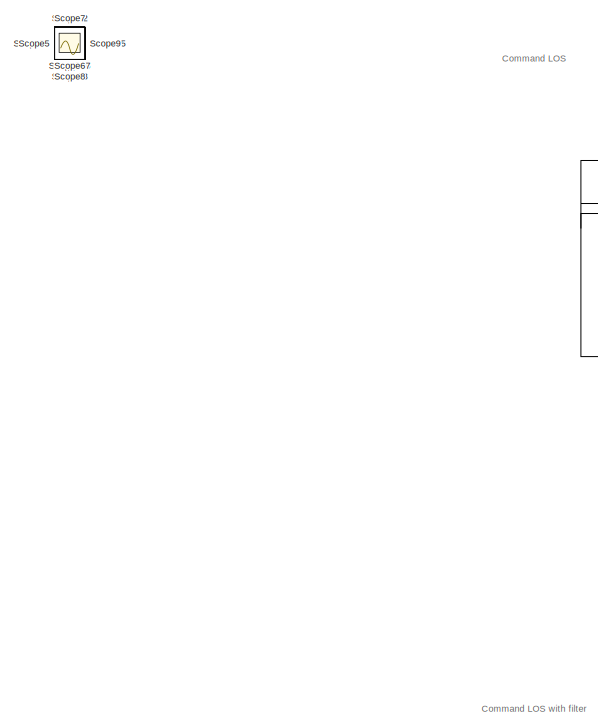
[diagram: root canvas - part 1/4, top left region]
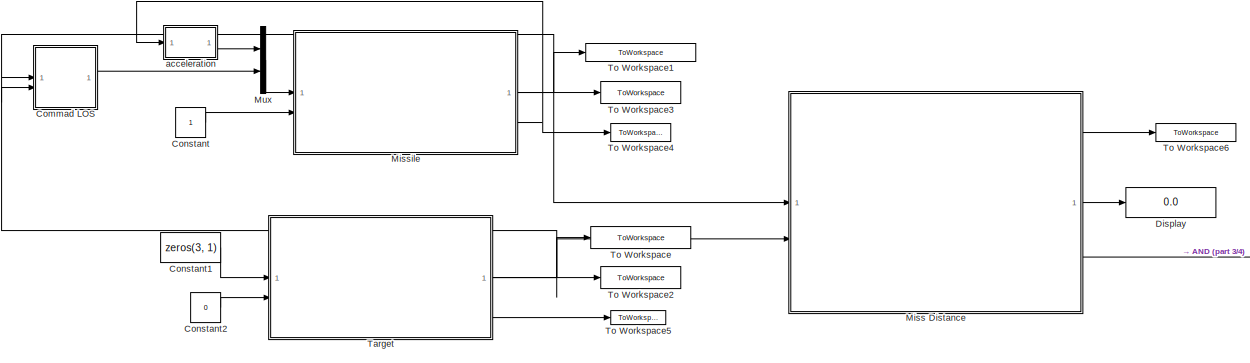
[diagram: root canvas - part 2/4, top center region]
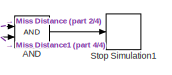
[diagram: root canvas - part 3/4, middle right region]
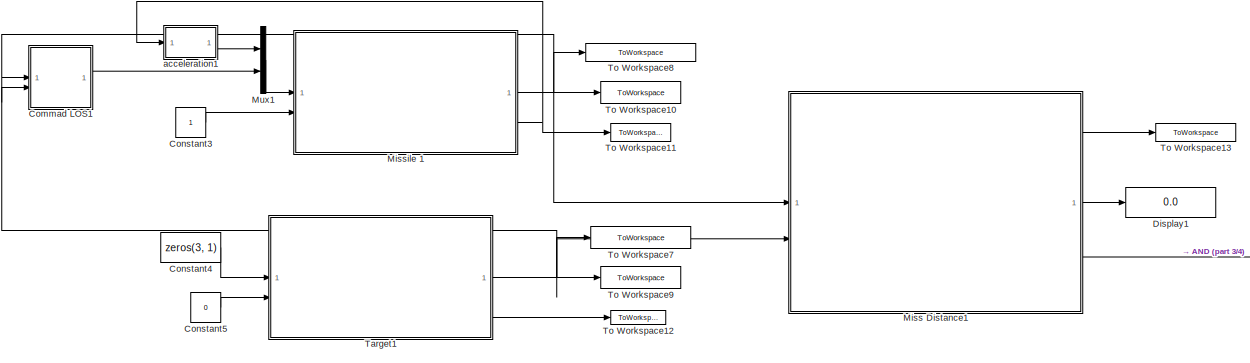
[diagram: root canvas - part 4/4, bottom center region]
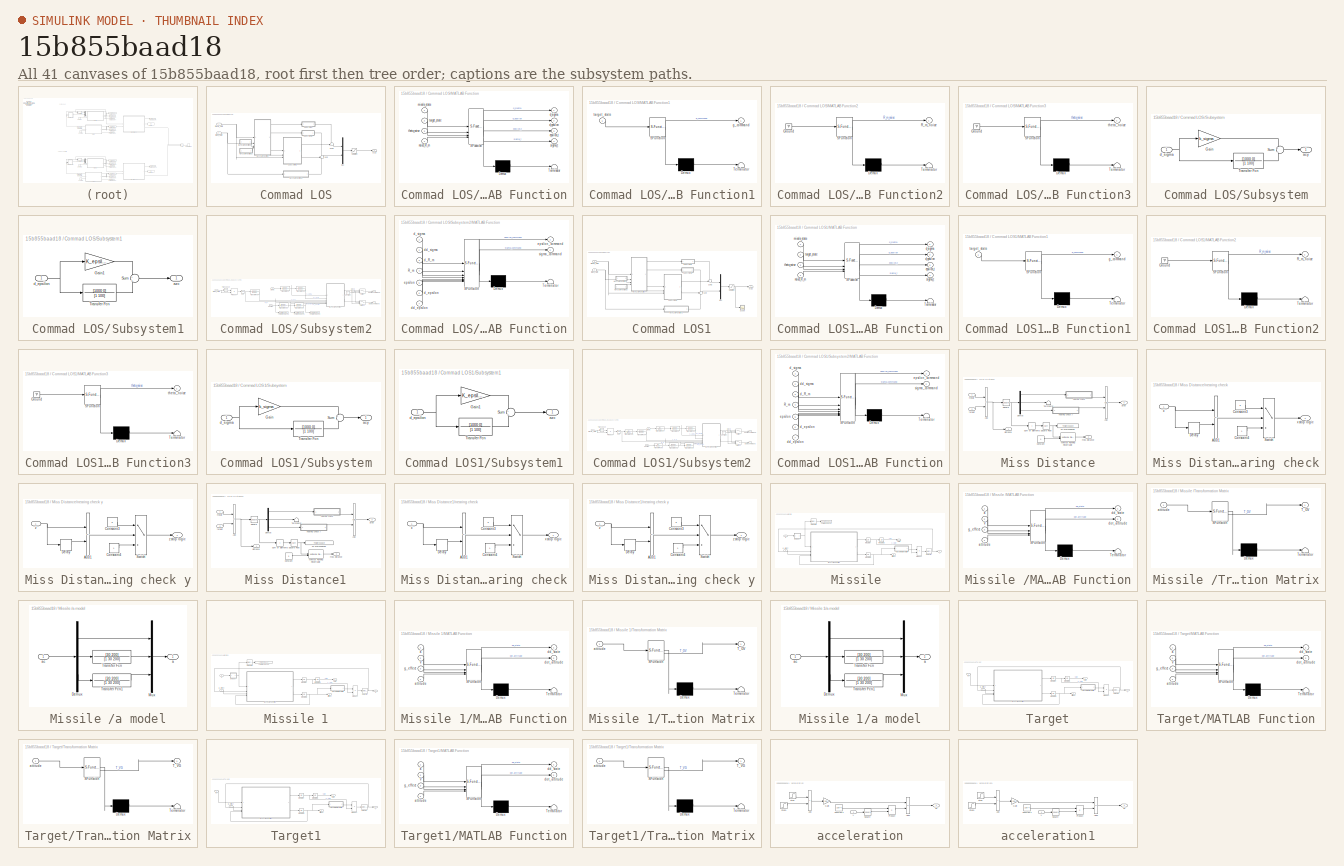
[diagram: thumbnail index - all 41 canvases of the model, root first then tree order]
MODEL slx_15b855baad18
KIND model
CONFIG AbsTol = auto
CONFIG EnableMultiTasking = off
CONFIG FixedStep = 0.002
CONFIG InitFcn = init; % init script
CONFIG MaxStep = auto
CONFIG MinStep = auto
CONFIG RelTol = 1e-3
CONFIG SampleTimeConstraint = Unconstrained
CONFIG SolverName = ode4
CONFIG StartTime = 0.0
CONFIG StopTime = inf
BLOCK [Logic] AND
  AllPortsSameDT = off
  IconShape = distinctive
  OutDataTypeStr = boolean
BLOCK [SubSystem] Commad LOS
BLOCK [SubSystem] Commad LOS/MATLAB Function
  ErrorFcn = Stateflow.Translate.translate
  LibrarySourceBlock = simulink/User-Defined\nFunctions/MATLAB Function
  PermitHierarchicalResolution = ExplicitOnly
  SFBlockType = MATLAB Function
  TreatAsAtomicUnit = on
BLOCK [Demux] Commad LOS/MATLAB Function/ Demux 
  Outputs = 1
BLOCK [S-Function] Commad LOS/MATLAB Function/ SFunction 
  EnableBusSupport = on
  FunctionName = sf_sfun
  PortCounts = [4 5]
  SFcnIsStateOwnerBlock = off
  SFunctionDeploymentMode = off
  Tag = Stateflow S-Function 7
BLOCK [Terminator] Commad LOS/MATLAB Function/ Terminator 
BLOCK [Outport] Commad LOS/MATLAB Function/d_epsilon
  Port = 2
BLOCK [Outport] Commad LOS/MATLAB Function/d_sigma
BLOCK [Outport] Commad LOS/MATLAB Function/epsilon_t
  Port = 3
BLOCK [Inport] Commad LOS/MATLAB Function/missle_state
BLOCK [Inport] Commad LOS/MATLAB Function/noise_R_m
  Port = 4
BLOCK [Outport] Commad LOS/MATLAB Function/sigma_t
  Port = 4
BLOCK [Inport] Commad LOS/MATLAB Function/target_state
  Port = 2
BLOCK [Inport] Commad LOS/MATLAB Function/theta_noise
  Port = 3
BLOCK [SubSystem] Commad LOS/MATLAB Function1
  ErrorFcn = Stateflow.Translate.translate
  LibrarySourceBlock = simulink/User-Defined\nFunctions/MATLAB Function
  PermitHierarchicalResolution = ExplicitOnly
  SFBlockType = MATLAB Function
  TreatAsAtomicUnit = on
BLOCK [Demux] Commad LOS/MATLAB Function1/ Demux 
  Outputs = 1
BLOCK [S-Function] Commad LOS/MATLAB Function1/ SFunction 
  EnableBusSupport = on
  FunctionName = sf_sfun
  PortCounts = [1 2]
  SFcnIsStateOwnerBlock = off
  SFunctionDeploymentMode = off
  Tag = Stateflow S-Function 8
BLOCK [Terminator] Commad LOS/MATLAB Function1/ Terminator 
BLOCK [Outport] Commad LOS/MATLAB Function1/g_command
BLOCK [Inport] Commad LOS/MATLAB Function1/target_state
BLOCK [SubSystem] Commad LOS/MATLAB Function2
  ErrorFcn = Stateflow.Translate.translate
  LibrarySourceBlock = simulink/User-Defined\nFunctions/MATLAB Function
  PermitHierarchicalResolution = ExplicitOnly
  SFBlockType = MATLAB Function
  TreatAsAtomicUnit = on
BLOCK [Demux] Commad LOS/MATLAB Function2/ Demux 
  Outputs = 1
BLOCK [Ground] Commad LOS/MATLAB Function2/ Ground 
BLOCK [S-Function] Commad LOS/MATLAB Function2/ SFunction 
  EnableBusSupport = on
  FunctionName = sf_sfun
  PortCounts = [1 2]
  SFcnIsStateOwnerBlock = off
  SFunctionDeploymentMode = off
  Tag = Stateflow S-Function 17
BLOCK [Terminator] Commad LOS/MATLAB Function2/ Terminator 
BLOCK [Outport] Commad LOS/MATLAB Function2/R_m_noise
BLOCK [SubSystem] Commad LOS/MATLAB Function3
  ErrorFcn = Stateflow.Translate.translate
  LibrarySourceBlock = simulink/User-Defined\nFunctions/MATLAB Function
  PermitHierarchicalResolution = ExplicitOnly
  SFBlockType = MATLAB Function
  TreatAsAtomicUnit = on
BLOCK [Demux] Commad LOS/MATLAB Function3/ Demux 
  Outputs = 1
BLOCK [Ground] Commad LOS/MATLAB Function3/ Ground 
BLOCK [S-Function] Commad LOS/MATLAB Function3/ SFunction 
  EnableBusSupport = on
  FunctionName = sf_sfun
  PortCounts = [1 2]
  SFcnIsStateOwnerBlock = off
  SFunctionDeploymentMode = off
  Tag = Stateflow S-Function 18
BLOCK [Terminator] Commad LOS/MATLAB Function3/ Terminator 
BLOCK [Outport] Commad LOS/MATLAB Function3/theta_noise
BLOCK [Mux] Commad LOS/Mux
  DisplayOption = bar
  Inputs = 2
BLOCK [Saturate] Commad LOS/Saturation
  LowerLimit = -5*9.81
  UpperLimit = 5*9.81
BLOCK [SubSystem] Commad LOS/Subsystem
BLOCK [Gain] Commad LOS/Subsystem/Gain
  Gain = k_sigma
BLOCK [Sum] Commad LOS/Subsystem/Sum
  Inputs = +|+
BLOCK [TransferFcn] Commad LOS/Subsystem/Transfer Fcn
  Denominator = [1 100]
  Numerator = [1000 0]
BLOCK [Outport] Commad LOS/Subsystem/acy
BLOCK [Inport] Commad LOS/Subsystem/d_sigma
BLOCK [SubSystem] Commad LOS/Subsystem1
BLOCK [Gain] Commad LOS/Subsystem1/Gain1
  Gain = K_epsilon
BLOCK [Sum] Commad LOS/Subsystem1/Sum
  Inputs = +|+
BLOCK [TransferFcn] Commad LOS/Subsystem1/Transfer Fcn
  Denominator = [1 100]
  Numerator = [1000 0]
BLOCK [Outport] Commad LOS/Subsystem1/azc
BLOCK [Inport] Commad LOS/Subsystem1/d_epsilon
BLOCK [SubSystem] Commad LOS/Subsystem2
BLOCK [Clock] Commad LOS/Subsystem2/Clock
BLOCK [Constant] Commad LOS/Subsystem2/Constant
  Value = 0
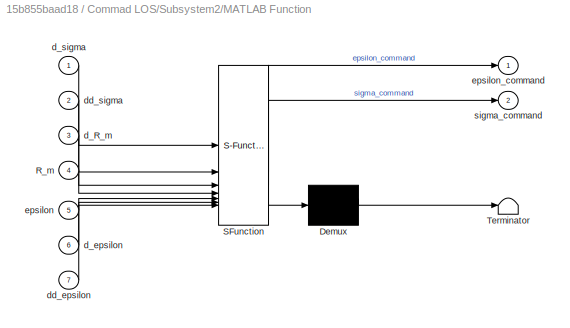
BLOCK [SubSystem] Commad LOS/Subsystem2/MATLAB Function
  ErrorFcn = Stateflow.Translate.translate
  LibrarySourceBlock = simulink/User-Defined\nFunctions/MATLAB Function
  PermitHierarchicalResolution = ExplicitOnly
  SFBlockType = MATLAB Function
  TreatAsAtomicUnit = on
BLOCK [Demux] Commad LOS/Subsystem2/MATLAB Function/ Demux 
  Outputs = 1
BLOCK [S-Function] Commad LOS/Subsystem2/MATLAB Function/ SFunction 
  EnableBusSupport = on
  FunctionName = sf_sfun
  PortCounts = [7 3]
  SFcnIsStateOwnerBlock = off
  SFunctionDeploymentMode = off
  Tag = Stateflow S-Function 13
BLOCK [Terminator] Commad LOS/Subsystem2/MATLAB Function/ Terminator 
BLOCK [Inport] Commad LOS/Subsystem2/MATLAB Function/R_m
  Port = 4
BLOCK [Inport] Commad LOS/Subsystem2/MATLAB Function/d_R_m
  Port = 3
BLOCK [Inport] Commad LOS/Subsystem2/MATLAB Function/d_epsilon
  Port = 6
BLOCK [Inport] Commad LOS/Subsystem2/MATLAB Function/d_sigma
BLOCK [Inport] Commad LOS/Subsystem2/MATLAB Function/dd_epsilon
  Port = 7
BLOCK [Inport] Commad LOS/Subsystem2/MATLAB Function/dd_sigma
  Port = 2
BLOCK [Inport] Commad LOS/Subsystem2/MATLAB Function/epsilon
  Port = 5
BLOCK [Outport] Commad LOS/Subsystem2/MATLAB Function/epsilon_command
BLOCK [Outport] Commad LOS/Subsystem2/MATLAB Function/sigma_command
  Port = 2
BLOCK [Product] Commad LOS/Subsystem2/Product
  Multiplication = Matrix(*)
BLOCK [Sqrt] Commad LOS/Subsystem2/Sqrt
BLOCK [Switch] Commad LOS/Subsystem2/Switch
  Criteria = u2 > Threshold
  InputSameDT = off
  SaturateOnIntegerOverflow = off
  Threshold = 0.2
BLOCK [Switch] Commad LOS/Subsystem2/Switch1
  Criteria = u2 > Threshold
  InputSameDT = off
  SaturateOnIntegerOverflow = off
  Threshold = 0.2
BLOCK [ToWorkspace] Commad LOS/Subsystem2/To Workspace1
  FixptAsFi = on
  MaxDataPoints = inf
  SampleTime = -1
  Save2DSignal = 2-D array (concatenate along first dimension)
  SaveFormat = Timeseries
  VariableName = d_theta
BLOCK [ToWorkspace] Commad LOS/Subsystem2/To Workspace2
  FixptAsFi = on
  MaxDataPoints = inf
  SampleTime = -1
  Save2DSignal = 2-D array (concatenate along first dimension)
  SaveFormat = Timeseries
  VariableName = dd_theta
BLOCK [ToWorkspace] Commad LOS/Subsystem2/To Workspace6
  FixptAsFi = on
  MaxDataPoints = inf
  SampleTime = -1
  Save2DSignal = 2-D array (concatenate along first dimension)
  SaveFormat = Timeseries
  VariableName = theta
BLOCK [TransferFcn] Commad LOS/Subsystem2/Transfer Fcn
  Denominator = [1 100]
  Numerator = [100 0]
BLOCK [TransferFcn] Commad LOS/Subsystem2/Transfer Fcn1
  Denominator = [1 100]
  Numerator = [100 0]
BLOCK [TransferFcn] Commad LOS/Subsystem2/Transfer Fcn2
  Denominator = [1 100]
  Numerator = [100 0]
BLOCK [TransferFcn] Commad LOS/Subsystem2/Transfer Fcn3
  Denominator = [1 100]
  Numerator = [100 0]
BLOCK [TransferFcn] Commad LOS/Subsystem2/Transfer Fcn4
  Denominator = [1 100]
  Numerator = [100 0]
BLOCK [Math] Commad LOS/Subsystem2/Transpose
  Operator = transpose
BLOCK [Inport] Commad LOS/Subsystem2/epsilon
BLOCK [Outport] Commad LOS/Subsystem2/epsilon command
  Port = 2
BLOCK [Inport] Commad LOS/Subsystem2/sigma
  Port = 2
BLOCK [Outport] Commad LOS/Subsystem2/sigma command
BLOCK [Inport] Commad LOS/Subsystem2/target_state
  Port = 3
BLOCK [Sum] Commad LOS/Sum
  Inputs = +++
BLOCK [Sum] Commad LOS/Sum2
  Inputs = ++|
BLOCK [Outport] Commad LOS/ay, az
BLOCK [Inport] Commad LOS/missle_state
BLOCK [Inport] Commad LOS/target_state
  Port = 2
BLOCK [SubSystem] Commad LOS1
BLOCK [SubSystem] Commad LOS1/MATLAB Function
  ErrorFcn = Stateflow.Translate.translate
  LibrarySourceBlock = simulink/User-Defined\nFunctions/MATLAB Function
  PermitHierarchicalResolution = ExplicitOnly
  SFBlockType = MATLAB Function
  TreatAsAtomicUnit = on
BLOCK [Demux] Commad LOS1/MATLAB Function/ Demux 
  Outputs = 1
BLOCK [S-Function] Commad LOS1/MATLAB Function/ SFunction 
  EnableBusSupport = on
  FunctionName = sf_sfun
  PortCounts = [4 5]
  SFcnIsStateOwnerBlock = off
  SFunctionDeploymentMode = off
  Tag = Stateflow S-Function 5
BLOCK [Terminator] Commad LOS1/MATLAB Function/ Terminator 
BLOCK [Outport] Commad LOS1/MATLAB Function/d_epsilon
  Port = 2
BLOCK [Outport] Commad LOS1/MATLAB Function/d_sigma
BLOCK [Outport] Commad LOS1/MATLAB Function/epsilon_t
  Port = 3
BLOCK [Inport] Commad LOS1/MATLAB Function/missle_state
BLOCK [Inport] Commad LOS1/MATLAB Function/noise_R_m
  Port = 4
BLOCK [Outport] Commad LOS1/MATLAB Function/sigma_t
  Port = 4
BLOCK [Inport] Commad LOS1/MATLAB Function/target_state
  Port = 2
BLOCK [Inport] Commad LOS1/MATLAB Function/theta_noise
  Port = 3
BLOCK [SubSystem] Commad LOS1/MATLAB Function1
  ErrorFcn = Stateflow.Translate.translate
  LibrarySourceBlock = simulink/User-Defined\nFunctions/MATLAB Function
  PermitHierarchicalResolution = ExplicitOnly
  SFBlockType = MATLAB Function
  TreatAsAtomicUnit = on
BLOCK [Demux] Commad LOS1/MATLAB Function1/ Demux 
  Outputs = 1
BLOCK [S-Function] Commad LOS1/MATLAB Function1/ SFunction 
  EnableBusSupport = on
  FunctionName = sf_sfun
  PortCounts = [1 2]
  SFcnIsStateOwnerBlock = off
  SFunctionDeploymentMode = off
  Tag = Stateflow S-Function 6
BLOCK [Terminator] Commad LOS1/MATLAB Function1/ Terminator 
BLOCK [Outport] Commad LOS1/MATLAB Function1/g_command
BLOCK [Inport] Commad LOS1/MATLAB Function1/target_state
BLOCK [SubSystem] Commad LOS1/MATLAB Function2
  ErrorFcn = Stateflow.Translate.translate
  LibrarySourceBlock = simulink/User-Defined\nFunctions/MATLAB Function
  PermitHierarchicalResolution = ExplicitOnly
  SFBlockType = MATLAB Function
  TreatAsAtomicUnit = on
BLOCK [Demux] Commad LOS1/MATLAB Function2/ Demux 
  Outputs = 1
BLOCK [Ground] Commad LOS1/MATLAB Function2/ Ground 
BLOCK [S-Function] Commad LOS1/MATLAB Function2/ SFunction 
  EnableBusSupport = on
  FunctionName = sf_sfun
  PortCounts = [1 2]
  SFcnIsStateOwnerBlock = off
  SFunctionDeploymentMode = off
  Tag = Stateflow S-Function 15
BLOCK [Terminator] Commad LOS1/MATLAB Function2/ Terminator 
BLOCK [Outport] Commad LOS1/MATLAB Function2/R_m_noise
BLOCK [SubSystem] Commad LOS1/MATLAB Function3
  ErrorFcn = Stateflow.Translate.translate
  LibrarySourceBlock = simulink/User-Defined\nFunctions/MATLAB Function
  PermitHierarchicalResolution = ExplicitOnly
  SFBlockType = MATLAB Function
  TreatAsAtomicUnit = on
BLOCK [Demux] Commad LOS1/MATLAB Function3/ Demux 
  Outputs = 1
BLOCK [Ground] Commad LOS1/MATLAB Function3/ Ground 
BLOCK [S-Function] Commad LOS1/MATLAB Function3/ SFunction 
  EnableBusSupport = on
  FunctionName = sf_sfun
  PortCounts = [1 2]
  SFcnIsStateOwnerBlock = off
  SFunctionDeploymentMode = off
  Tag = Stateflow S-Function 16
BLOCK [Terminator] Commad LOS1/MATLAB Function3/ Terminator 
BLOCK [Outport] Commad LOS1/MATLAB Function3/theta_noise
BLOCK [Mux] Commad LOS1/Mux
  DisplayOption = bar
  Inputs = 2
BLOCK [Saturate] Commad LOS1/Saturation
  LowerLimit = -5*9.81
  UpperLimit = 5*9.81
BLOCK [Scope] Commad LOS1/Scope
  Floating = off
  NumInputPorts = 1
  ScopeSpecificationString = Simulink.scopes.TimeScopeBlockCfg('CurrentConfiguration', extmgr.ConfigurationSet(extmgr.Configuration('Core','General UI',true),extmgr.Configuration('Core','Source UI',true),extmgr.Configuration('Sources','WiredSimulink',true,'DataLoggingVariableName','ScopeData1'),extmgr.Configuration('Visuals','Time Domain',true,'SerializedDisplays',{struct('MinYLimReal','-61.3125','MaxYLimReal','61.3125','YLab...<+1411ch>
BLOCK [SubSystem] Commad LOS1/Subsystem
BLOCK [Gain] Commad LOS1/Subsystem/Gain
  Gain = k_sigma
BLOCK [Sum] Commad LOS1/Subsystem/Sum
  Inputs = +|+
BLOCK [TransferFcn] Commad LOS1/Subsystem/Transfer Fcn
  Denominator = [1 100]
  Numerator = [1000 0]
BLOCK [Outport] Commad LOS1/Subsystem/acy
BLOCK [Inport] Commad LOS1/Subsystem/d_sigma
BLOCK [SubSystem] Commad LOS1/Subsystem1
BLOCK [Gain] Commad LOS1/Subsystem1/Gain1
  Gain = K_epsilon
BLOCK [Sum] Commad LOS1/Subsystem1/Sum
  Inputs = +|+
BLOCK [TransferFcn] Commad LOS1/Subsystem1/Transfer Fcn
  Denominator = [1 100]
  Numerator = [1000 0]
BLOCK [Outport] Commad LOS1/Subsystem1/azc
BLOCK [Inport] Commad LOS1/Subsystem1/d_epsilon
BLOCK [SubSystem] Commad LOS1/Subsystem2
BLOCK [Clock] Commad LOS1/Subsystem2/Clock
BLOCK [Constant] Commad LOS1/Subsystem2/Constant
  Value = 0
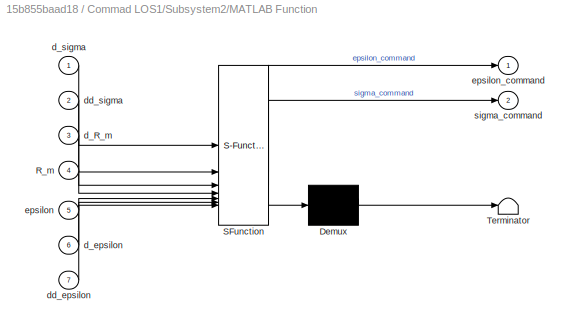
BLOCK [SubSystem] Commad LOS1/Subsystem2/MATLAB Function
  ErrorFcn = Stateflow.Translate.translate
  LibrarySourceBlock = simulink/User-Defined\nFunctions/MATLAB Function
  PermitHierarchicalResolution = ExplicitOnly
  SFBlockType = MATLAB Function
  TreatAsAtomicUnit = on
BLOCK [Demux] Commad LOS1/Subsystem2/MATLAB Function/ Demux 
  Outputs = 1
BLOCK [S-Function] Commad LOS1/Subsystem2/MATLAB Function/ SFunction 
  EnableBusSupport = on
  FunctionName = sf_sfun
  PortCounts = [7 3]
  SFcnIsStateOwnerBlock = off
  SFunctionDeploymentMode = off
  Tag = Stateflow S-Function 9
BLOCK [Terminator] Commad LOS1/Subsystem2/MATLAB Function/ Terminator 
BLOCK [Inport] Commad LOS1/Subsystem2/MATLAB Function/R_m
  Port = 4
BLOCK [Inport] Commad LOS1/Subsystem2/MATLAB Function/d_R_m
  Port = 3
BLOCK [Inport] Commad LOS1/Subsystem2/MATLAB Function/d_epsilon
  Port = 6
BLOCK [Inport] Commad LOS1/Subsystem2/MATLAB Function/d_sigma
BLOCK [Inport] Commad LOS1/Subsystem2/MATLAB Function/dd_epsilon
  Port = 7
BLOCK [Inport] Commad LOS1/Subsystem2/MATLAB Function/dd_sigma
  Port = 2
BLOCK [Inport] Commad LOS1/Subsystem2/MATLAB Function/epsilon
  Port = 5
BLOCK [Outport] Commad LOS1/Subsystem2/MATLAB Function/epsilon_command
BLOCK [Outport] Commad LOS1/Subsystem2/MATLAB Function/sigma_command
  Port = 2
BLOCK [Product] Commad LOS1/Subsystem2/Product
  Multiplication = Matrix(*)
BLOCK [Sqrt] Commad LOS1/Subsystem2/Sqrt
BLOCK [Switch] Commad LOS1/Subsystem2/Switch
  Criteria = u2 > Threshold
  InputSameDT = off
  SaturateOnIntegerOverflow = off
  Threshold = 0.2
BLOCK [Switch] Commad LOS1/Subsystem2/Switch1
  Criteria = u2 > Threshold
  InputSameDT = off
  SaturateOnIntegerOverflow = off
  Threshold = 0.2
BLOCK [TransferFcn] Commad LOS1/Subsystem2/Transfer Fcn
  Denominator = [1 100]
  Numerator = [100 0]
BLOCK [TransferFcn] Commad LOS1/Subsystem2/Transfer Fcn1
  Denominator = [1 100]
  Numerator = [100 0]
BLOCK [TransferFcn] Commad LOS1/Subsystem2/Transfer Fcn2
  Denominator = [1 100]
  Numerator = [100 0]
BLOCK [TransferFcn] Commad LOS1/Subsystem2/Transfer Fcn3
  Denominator = [1 100]
  Numerator = [100 0]
BLOCK [TransferFcn] Commad LOS1/Subsystem2/Transfer Fcn4
  Denominator = [1 100]
  Numerator = [100 0]
BLOCK [TransferFcn] Commad LOS1/Subsystem2/Transfer Fcn5
  Denominator = [0.1 1]
BLOCK [TransferFcn] Commad LOS1/Subsystem2/Transfer Fcn6
  Denominator = [0.1 1]
BLOCK [TransferFcn] Commad LOS1/Subsystem2/Transfer Fcn7
  Denominator = [0.1 1]
BLOCK [Math] Commad LOS1/Subsystem2/Transpose
  Operator = transpose
BLOCK [Inport] Commad LOS1/Subsystem2/epsilon
BLOCK [Outport] Commad LOS1/Subsystem2/epsilon command
  Port = 2
BLOCK [Inport] Commad LOS1/Subsystem2/missle_state
  Port = 3
BLOCK [Inport] Commad LOS1/Subsystem2/sigma
  Port = 2
BLOCK [Outport] Commad LOS1/Subsystem2/sigma command
BLOCK [Sum] Commad LOS1/Sum
  Inputs = +++
BLOCK [Sum] Commad LOS1/Sum2
  Inputs = ++|
BLOCK [Outport] Commad LOS1/ay, az
BLOCK [Inport] Commad LOS1/missle_state
BLOCK [Inport] Commad LOS1/target_state
  Port = 2
BLOCK [Constant] Constant
BLOCK [Constant] Constant1
  Value = zeros(3, 1)
BLOCK [Constant] Constant2
  Value = 0
BLOCK [Constant] Constant3
BLOCK [Constant] Constant4
  Value = zeros(3, 1)
BLOCK [Constant] Constant5
  Value = 0
BLOCK [Display] Display
  Decimation = 1
BLOCK [Display] Display1
  Decimation = 1
BLOCK [SubSystem] Miss Distance
BLOCK [Logic] Miss Distance/AND
  AllPortsSameDT = off
  IconShape = distinctive
  OutDataTypeStr = boolean
BLOCK [Sum] Miss Distance/Add
  IconShape = rectangular
  Inputs = +-
BLOCK [Constant] Miss Distance/Constant
  Value = 0
BLOCK [Demux] Miss Distance/Demux
  Outputs = 3
BLOCK [Reference] Miss Distance/MinMax Running Resettable  REF=simulink/Math
Operations/MinMax
Running
Resettable
  SourceBlock = simulink/Math\nOperations/MinMax\nRunning\nResettable
  SourceType = MinMax Running Resettable
BLOCK [Math] Miss Distance/Square
  Operator = square
BLOCK [Sqrt] Miss Distance/Square Root
BLOCK [Outport] Miss Distance/Stop
  Port = 3
BLOCK [Sum] Miss Distance/Sum of Elements
  IconShape = rectangular
  Inputs = +
BLOCK [Terminator] Miss Distance/Terminator
BLOCK [ToWorkspace] Miss Distance/To Workspace6
  FixptAsFi = on
  MaxDataPoints = inf
  SampleTime = -1
  Save2DSignal = 2-D array (concatenate along first dimension)
  SaveFormat = Timeseries
  VariableName = distance_CLOS
BLOCK [Outport] Miss Distance/distance
BLOCK [Outport] Miss Distance/miss distance
  Port = 2
BLOCK [Inport] Miss Distance/missle
BLOCK [SubSystem] Miss Distance/nearing check
BLOCK [SubSystem] Miss Distance/nearing check y
BLOCK [Sum] Miss Distance/nearing check y/Add1
  IconShape = rectangular
  Inputs = -+
BLOCK [Constant] Miss Distance/nearing check y/Constant3
  Value = 0
BLOCK [Constant] Miss Distance/nearing check y/Constant4
BLOCK [Delay] Miss Distance/nearing check y/Delay
  DelayLength = 1
  InitialCondition = inf
  InputPortMap = u0
BLOCK [Switch] Miss Distance/nearing check y/Switch
  Criteria = u2 > Threshold
  InputSameDT = off
  SaturateOnIntegerOverflow = off
BLOCK [Inport] Miss Distance/nearing check y/z
BLOCK [Outport] Miss Distance/nearing check y/z stop logic
BLOCK [Sum] Miss Distance/nearing check/Add1
  IconShape = rectangular
  Inputs = -+
BLOCK [Constant] Miss Distance/nearing check/Constant3
  Value = 0
BLOCK [Constant] Miss Distance/nearing check/Constant4
BLOCK [Delay] Miss Distance/nearing check/Delay
  DelayLength = 1
  InitialCondition = inf
  InputPortMap = u0
BLOCK [Switch] Miss Distance/nearing check/Switch
  Criteria = u2 > Threshold
  InputSameDT = off
  SaturateOnIntegerOverflow = off
BLOCK [Inport] Miss Distance/nearing check/x
BLOCK [Outport] Miss Distance/nearing check/x stop logic
BLOCK [Inport] Miss Distance/target
  Port = 2
BLOCK [SubSystem] Miss Distance1
BLOCK [Logic] Miss Distance1/AND
  AllPortsSameDT = off
  IconShape = distinctive
  OutDataTypeStr = boolean
BLOCK [Sum] Miss Distance1/Add
  IconShape = rectangular
  Inputs = +-
BLOCK [Constant] Miss Distance1/Constant
  Value = 0
BLOCK [Demux] Miss Distance1/Demux
  Outputs = 3
BLOCK [Reference] Miss Distance1/MinMax Running Resettable  REF=simulink/Math
Operations/MinMax
Running
Resettable
  SourceBlock = simulink/Math\nOperations/MinMax\nRunning\nResettable
  SourceType = MinMax Running Resettable
BLOCK [Math] Miss Distance1/Square
  Operator = square
BLOCK [Sqrt] Miss Distance1/Square Root
BLOCK [Outport] Miss Distance1/Stop
  Port = 3
BLOCK [Sum] Miss Distance1/Sum of Elements
  IconShape = rectangular
  Inputs = +
BLOCK [Terminator] Miss Distance1/Terminator
BLOCK [ToWorkspace] Miss Distance1/To Workspace6
  FixptAsFi = on
  MaxDataPoints = inf
  SampleTime = -1
  Save2DSignal = 2-D array (concatenate along first dimension)
  SaveFormat = Timeseries
  VariableName = distance_CLOS_with_filter
BLOCK [Outport] Miss Distance1/distance
BLOCK [Outport] Miss Distance1/miss distance
  Port = 2
BLOCK [Inport] Miss Distance1/missle
BLOCK [SubSystem] Miss Distance1/nearing check
BLOCK [SubSystem] Miss Distance1/nearing check y
BLOCK [Sum] Miss Distance1/nearing check y/Add1
  IconShape = rectangular
  Inputs = -+
BLOCK [Constant] Miss Distance1/nearing check y/Constant3
  Value = 0
BLOCK [Constant] Miss Distance1/nearing check y/Constant4
BLOCK [Delay] Miss Distance1/nearing check y/Delay
  DelayLength = 1
  InitialCondition = inf
  InputPortMap = u0
BLOCK [Switch] Miss Distance1/nearing check y/Switch
  Criteria = u2 > Threshold
  InputSameDT = off
  SaturateOnIntegerOverflow = off
BLOCK [Inport] Miss Distance1/nearing check y/z
BLOCK [Outport] Miss Distance1/nearing check y/z stop logic
BLOCK [Sum] Miss Distance1/nearing check/Add1
  IconShape = rectangular
  Inputs = -+
BLOCK [Constant] Miss Distance1/nearing check/Constant3
  Value = 0
BLOCK [Constant] Miss Distance1/nearing check/Constant4
BLOCK [Delay] Miss Distance1/nearing check/Delay
  DelayLength = 1
  InitialCondition = inf
  InputPortMap = u0
BLOCK [Switch] Miss Distance1/nearing check/Switch
  Criteria = u2 > Threshold
  InputSameDT = off
  SaturateOnIntegerOverflow = off
BLOCK [Inport] Miss Distance1/nearing check/x
BLOCK [Outport] Miss Distance1/nearing check/x stop logic
BLOCK [Inport] Miss Distance1/target
  Port = 2
BLOCK [SubSystem] Missile 
BLOCK [Integrator] Missile /Integrator
  InitialCondition = d_state_m
BLOCK [Integrator] Missile /Integrator1
  InitialCondition = state_m0
BLOCK [Integrator] Missile /Integrator2
  InitialCondition = attitude_m0
BLOCK [SubSystem] Missile /MATLAB Function
  ErrorFcn = Stateflow.Translate.translate
  LibrarySourceBlock = simulink/User-Defined\nFunctions/MATLAB Function
  PermitHierarchicalResolution = ExplicitOnly
  SFBlockType = MATLAB Function
  TreatAsAtomicUnit = on
BLOCK [Demux] Missile /MATLAB Function/ Demux 
  Outputs = 1
BLOCK [S-Function] Missile /MATLAB Function/ SFunction 
  EnableBusSupport = on
  FunctionName = sf_sfun
  PortCounts = [4 3]
  SFcnIsStateOwnerBlock = off
  SFunctionDeploymentMode = off
  Tag = Stateflow S-Function 2
BLOCK [Terminator] Missile /MATLAB Function/ Terminator 
BLOCK [Inport] Missile /MATLAB Function/V
  Port = 2
BLOCK [Inport] Missile /MATLAB Function/a
BLOCK [Inport] Missile /MATLAB Function/attitude
  Port = 4
BLOCK [Outport] Missile /MATLAB Function/dd_state
BLOCK [Outport] Missile /MATLAB Function/dot_attitude
  Port = 2
BLOCK [Inport] Missile /MATLAB Function/g_effect
  Port = 3
BLOCK [Product] Missile /Product
  Multiplication = Matrix(*)
BLOCK [Selector] Missile /Selector
  IndexOptions = Index vector (dialog)
  Indices = [1]
  InputPortWidth = 3
  OutputSizes = 1
BLOCK [Selector] Missile /Selector1
  IndexOptions = Index vector (dialog)
  Indices = [2 3]
  InputPortWidth = 3
  OutputSizes = 1
BLOCK [ToWorkspace] Missile /To Workspace6
  FixptAsFi = on
  MaxDataPoints = inf
  SampleTime = -1
  Save2DSignal = 2-D array (concatenate along first dimension)
  SaveFormat = Timeseries
  VariableName = command_CLOS
BLOCK [SubSystem] Missile /Transformation Matrix
  ErrorFcn = Stateflow.Translate.translate
  LibrarySourceBlock = simulink/User-Defined\nFunctions/MATLAB Function
  PermitHierarchicalResolution = ExplicitOnly
  SFBlockType = MATLAB Function
  TreatAsAtomicUnit = on
BLOCK [Demux] Missile /Transformation Matrix/ Demux 
  Outputs = 1
BLOCK [S-Function] Missile /Transformation Matrix/ SFunction 
  EnableBusSupport = on
  FunctionName = sf_sfun
  PortCounts = [1 2]
  SFcnIsStateOwnerBlock = off
  SFunctionDeploymentMode = off
  Tag = Stateflow S-Function 1
BLOCK [Terminator] Missile /Transformation Matrix/ Terminator 
BLOCK [Outport] Missile /Transformation Matrix/T_GV
BLOCK [Inport] Missile /Transformation Matrix/attitude
BLOCK [Outport] Missile /V
  Port = 3
BLOCK [Inport] Missile /a
BLOCK [SubSystem] Missile /a model
BLOCK [Demux] Missile /a model/Demux
  Outputs = 3
BLOCK [Mux] Missile /a model/Mux
  DisplayOption = bar
  Inputs = 3
BLOCK [TransferFcn] Missile /a model/Transfer Fcn
  Denominator = [1 30 200]
  Numerator = [30 200]
BLOCK [TransferFcn] Missile /a model/Transfer Fcn1
  Denominator = [1 30 200]
  Numerator = [30 200]
BLOCK [Outport] Missile /a model/a
BLOCK [Inport] Missile /a model/ac
BLOCK [Outport] Missile /attitude
  Port = 2
BLOCK [Inport] Missile /g_effect
  Port = 2
BLOCK [Outport] Missile /state
BLOCK [SubSystem] Missile 1
BLOCK [Integrator] Missile 1/Integrator
  InitialCondition = d_state_m
BLOCK [Integrator] Missile 1/Integrator1
  InitialCondition = state_m0
BLOCK [Integrator] Missile 1/Integrator2
  InitialCondition = attitude_m0
BLOCK [SubSystem] Missile 1/MATLAB Function
  ErrorFcn = Stateflow.Translate.translate
  LibrarySourceBlock = simulink/User-Defined\nFunctions/MATLAB Function
  PermitHierarchicalResolution = ExplicitOnly
  SFBlockType = MATLAB Function
  TreatAsAtomicUnit = on
BLOCK [Demux] Missile 1/MATLAB Function/ Demux 
  Outputs = 1
BLOCK [S-Function] Missile 1/MATLAB Function/ SFunction 
  EnableBusSupport = on
  FunctionName = sf_sfun
  PortCounts = [4 3]
  SFcnIsStateOwnerBlock = off
  SFunctionDeploymentMode = off
  Tag = Stateflow S-Function 10
BLOCK [Terminator] Missile 1/MATLAB Function/ Terminator 
BLOCK [Inport] Missile 1/MATLAB Function/V
  Port = 2
BLOCK [Inport] Missile 1/MATLAB Function/a
BLOCK [Inport] Missile 1/MATLAB Function/attitude
  Port = 4
BLOCK [Outport] Missile 1/MATLAB Function/dd_state
BLOCK [Outport] Missile 1/MATLAB Function/dot_attitude
  Port = 2
BLOCK [Inport] Missile 1/MATLAB Function/g_effect
  Port = 3
BLOCK [Product] Missile 1/Product
  Multiplication = Matrix(*)
BLOCK [Selector] Missile 1/Selector
  IndexOptions = Index vector (dialog)
  Indices = [1]
  InputPortWidth = 3
  OutputSizes = 1
BLOCK [Selector] Missile 1/Selector1
  IndexOptions = Index vector (dialog)
  Indices = [2 3]
  InputPortWidth = 3
  OutputSizes = 1
BLOCK [ToWorkspace] Missile 1/To Workspace6
  FixptAsFi = on
  MaxDataPoints = inf
  SampleTime = -1
  Save2DSignal = 2-D array (concatenate along first dimension)
  SaveFormat = Timeseries
  VariableName = command_CLOS_with_filter
BLOCK [SubSystem] Missile 1/Transformation Matrix
  ErrorFcn = Stateflow.Translate.translate
  LibrarySourceBlock = simulink/User-Defined\nFunctions/MATLAB Function
  PermitHierarchicalResolution = ExplicitOnly
  SFBlockType = MATLAB Function
  TreatAsAtomicUnit = on
BLOCK [Demux] Missile 1/Transformation Matrix/ Demux 
  Outputs = 1
BLOCK [S-Function] Missile 1/Transformation Matrix/ SFunction 
  EnableBusSupport = on
  FunctionName = sf_sfun
  PortCounts = [1 2]
  SFcnIsStateOwnerBlock = off
  SFunctionDeploymentMode = off
  Tag = Stateflow S-Function 11
BLOCK [Terminator] Missile 1/Transformation Matrix/ Terminator 
BLOCK [Outport] Missile 1/Transformation Matrix/T_GV
BLOCK [Inport] Missile 1/Transformation Matrix/attitude
BLOCK [Outport] Missile 1/V
  Port = 3
BLOCK [Inport] Missile 1/a
BLOCK [SubSystem] Missile 1/a model
BLOCK [Demux] Missile 1/a model/Demux
  Outputs = 3
BLOCK [Mux] Missile 1/a model/Mux
  DisplayOption = bar
  Inputs = 3
BLOCK [TransferFcn] Missile 1/a model/Transfer Fcn
  Denominator = [1 30 200]
  Numerator = [30 200]
BLOCK [TransferFcn] Missile 1/a model/Transfer Fcn1
  Denominator = [1 30 200]
  Numerator = [30 200]
BLOCK [Outport] Missile 1/a model/a
BLOCK [Inport] Missile 1/a model/ac
BLOCK [Outport] Missile 1/attitude
  Port = 2
BLOCK [Inport] Missile 1/g_effect
  Port = 2
BLOCK [Outport] Missile 1/state
BLOCK [Mux] Mux
  DisplayOption = bar
  Inputs = 2
BLOCK [Mux] Mux1
  DisplayOption = bar
  Inputs = 2
BLOCK [Scope] Scope
  Floating = off
  IOType = viewer
  NumInputPorts = 1
  ScopeSpecificationString = Simulink.scopes.TimeScopeBlockCfg('CurrentConfiguration', extmgr.ConfigurationSet(extmgr.Configuration('Core','General UI',true),extmgr.Configuration('Core','Source UI',true),extmgr.Configuration('Sources','WiredSimulink',true,'DataLoggingVariableName','ScopeData1'),extmgr.Configuration('Visuals','Time Domain',true,'SerializedDisplays',{struct('MinYLimReal','-9095.33525','MaxYLimReal','1858.01721'...<+1452ch>
BLOCK [Scope] Scope1
  Floating = off
  IOType = viewer
  NumInputPorts = 1
  ScopeSpecificationString = Simulink.scopes.TimeScopeBlockCfg('CurrentConfiguration', extmgr.ConfigurationSet(extmgr.Configuration('Core','General UI',true),extmgr.Configuration('Core','Source UI',true),extmgr.Configuration('Sources','WiredSimulink',true,'DataLoggingVariableName','ScopeData1'),extmgr.Configuration('Visuals','Time Domain',true,'SerializedDisplays',{struct('MinYLimReal','-72.81517','MaxYLimReal','655.33657','Y...<+1392ch>
BLOCK [Scope] Scope10
  Floating = off
  IOType = viewer
  NumInputPorts = 1
  ScopeSpecificationString = Simulink.scopes.TimeScopeBlockCfg('CurrentConfiguration', extmgr.ConfigurationSet(extmgr.Configuration('Core','General UI',true),extmgr.Configuration('Core','Source UI',true),extmgr.Configuration('Sources','WiredSimulink',true,'DataLoggingVariableName','ScopeData10'),extmgr.Configuration('Visuals','Time Domain',true,'SerializedDisplays',{struct('MinYLimReal','-0.3927','MaxYLimReal','3.53429','YLab...<+1358ch>
BLOCK [Scope] Scope11
  Floating = off
  IOType = viewer
  NumInputPorts = 1
  ScopeSpecificationString = Simulink.scopes.TimeScopeBlockCfg('CurrentConfiguration', extmgr.ConfigurationSet(extmgr.Configuration('Core','General UI',true),extmgr.Configuration('Core','Source UI',true),extmgr.Configuration('Sources','WiredSimulink',true,'DataLoggingVariableName','ScopeData11'),extmgr.Configuration('Visuals','Time Domain',true,'SerializedDisplays',{struct('MinYLimReal','200.00000','MaxYLimReal','400.00000','...<+1374ch>
BLOCK [Scope] Scope12
  Floating = off
  IOType = viewer
  NumInputPorts = 1
  ScopeSpecificationString = Simulink.scopes.TimeScopeBlockCfg('CurrentConfiguration', extmgr.ConfigurationSet(extmgr.Configuration('Core','General UI',true),extmgr.Configuration('Core','Source UI',true),extmgr.Configuration('Sources','WiredSimulink',true,'DataLoggingVariableName','ScopeData1'),extmgr.Configuration('Visuals','Time Domain',true,'SerializedDisplays',{struct('MinYLimReal','-604.06326','MaxYLimReal','5436.56932',...<+1402ch>
BLOCK [Scope] Scope13
  Floating = off
  IOType = viewer
  NumInputPorts = 1
  ScopeSpecificationString = Simulink.scopes.TimeScopeBlockCfg('CurrentConfiguration', extmgr.ConfigurationSet(extmgr.Configuration('Core','General UI',true),extmgr.Configuration('Core','Source UI',true),extmgr.Configuration('Sources','WiredSimulink',true,'DataLoggingVariableName','ScopeData1'),extmgr.Configuration('Visuals','Time Domain',true,'SerializedDisplays',{struct('MinYLimReal','-466.98384','MaxYLimReal','4202.85452',...<+1402ch>
BLOCK [Scope] Scope14
  Floating = off
  IOType = viewer
  NumInputPorts = 1
  ScopeSpecificationString = Simulink.scopes.TimeScopeBlockCfg('CurrentConfiguration', extmgr.ConfigurationSet(extmgr.Configuration('Core','General UI',true),extmgr.Configuration('Core','Source UI',true),extmgr.Configuration('Sources','WiredSimulink',true,'DataLoggingVariableName','ScopeData2'),extmgr.Configuration('Visuals','Time Domain',true,'SerializedDisplays',{struct('MinYLimReal','-0.00000000000008','MaxYLimReal','0.000...<+1456ch>
BLOCK [Scope] Scope15
  Floating = off
  IOType = viewer
  NumInputPorts = 1
  ScopeSpecificationString = Simulink.scopes.TimeScopeBlockCfg('CurrentConfiguration', extmgr.ConfigurationSet(extmgr.Configuration('Core','General UI',true),extmgr.Configuration('Core','Source UI',true),extmgr.Configuration('Sources','WiredSimulink',true,'DataLoggingVariableName','ScopeData2'),extmgr.Configuration('Visuals','Time Domain',true,'SerializedDisplays',{struct('MinYLimReal','-213.84217','MaxYLimReal','1924.57952',...<+1402ch>
BLOCK [Scope] Scope16
  Floating = off
  IOType = viewer
  NumInputPorts = 1
  ScopeSpecificationString = Simulink.scopes.TimeScopeBlockCfg('CurrentConfiguration', extmgr.ConfigurationSet(extmgr.Configuration('Core','General UI',true),extmgr.Configuration('Core','Source UI',true),extmgr.Configuration('Sources','WiredSimulink',true,'DataLoggingVariableName','ScopeData4'),extmgr.Configuration('Visuals','Time Domain',true,'SerializedDisplays',{struct('MinYLimReal','-6.13125','MaxYLimReal','55.18125','YLa...<+1388ch>
BLOCK [Scope] Scope17
  Floating = off
  IOType = viewer
  NumInputPorts = 1
  ScopeSpecificationString = Simulink.scopes.TimeScopeBlockCfg('CurrentConfiguration', extmgr.ConfigurationSet(extmgr.Configuration('Core','General UI',true),extmgr.Configuration('Core','Source UI',true),extmgr.Configuration('Sources','WiredSimulink',true,'DataLoggingVariableName','ScopeData5'),extmgr.Configuration('Visuals','Time Domain',true,'SerializedDisplays',{struct('MinYLimReal','5619.48731','MaxYLimReal','5775.59496',...<+1406ch>
BLOCK [Scope] Scope18
  Floating = off
  IOType = viewer
  NumInputPorts = 1
  ScopeSpecificationString = Simulink.scopes.TimeScopeBlockCfg('CurrentConfiguration', extmgr.ConfigurationSet(extmgr.Configuration('Core','General UI',true),extmgr.Configuration('Core','Source UI',true),extmgr.Configuration('Sources','WiredSimulink',true,'DataLoggingVariableName','ScopeData6'),extmgr.Configuration('Visuals','Time Domain',true,'SerializedDisplays',{struct('MinYLimReal','0.000000000000000073','MaxYLimReal','0....<+1519ch>
BLOCK [Scope] Scope19
  Floating = off
  IOType = viewer
  NumInputPorts = 1
  ScopeSpecificationString = Simulink.scopes.TimeScopeBlockCfg('CurrentConfiguration', extmgr.ConfigurationSet(extmgr.Configuration('Core','General UI',true),extmgr.Configuration('Core','Source UI',true),extmgr.Configuration('Sources','WiredSimulink',true,'DataLoggingVariableName','ScopeData1'),extmgr.Configuration('Visuals','Time Domain',true,'SerializedDisplays',{struct('MinYLimReal','0.53931','MaxYLimReal','0.55017','YLabe...<+1382ch>
BLOCK [Scope] Scope2
  Floating = off
  IOType = viewer
  NumInputPorts = 1
  ScopeSpecificationString = Simulink.scopes.TimeScopeBlockCfg('CurrentConfiguration', extmgr.ConfigurationSet(extmgr.Configuration('Core','General UI',true),extmgr.Configuration('Core','Source UI',true),extmgr.Configuration('Sources','WiredSimulink',true,'DataLoggingVariableName','ScopeData1'),extmgr.Configuration('Visuals','Time Domain',true,'SerializedDisplays',{struct('MinYLimReal','-6.13125','MaxYLimReal','55.18125','YLa...<+1388ch>
BLOCK [Scope] Scope20
  Floating = off
  IOType = viewer
  NumInputPorts = 1
  ScopeSpecificationString = Simulink.scopes.TimeScopeBlockCfg('CurrentConfiguration', extmgr.ConfigurationSet(extmgr.Configuration('Core','General UI',true),extmgr.Configuration('Core','Source UI',true),extmgr.Configuration('Sources','WiredSimulink',true,'DataLoggingVariableName','ScopeData8'),extmgr.Configuration('Visuals','Time Domain',true,'SerializedDisplays',{struct('MinYLimReal','0.02908','MaxYLimReal','0.03012','YLabe...<+1382ch>
BLOCK [Scope] Scope21
  Floating = off
  IOType = viewer
  NumInputPorts = 1
  ScopeSpecificationString = Simulink.scopes.TimeScopeBlockCfg('CurrentConfiguration', extmgr.ConfigurationSet(extmgr.Configuration('Core','General UI',true),extmgr.Configuration('Core','Source UI',true),extmgr.Configuration('Sources','WiredSimulink',true,'DataLoggingVariableName','ScopeData9'),extmgr.Configuration('Visuals','Time Domain',true,'SerializedDisplays',{struct('MinYLimReal','0.28379','MaxYLimReal','0.294','YLabelR...<+1374ch>
BLOCK [Scope] Scope22
  Floating = off
  IOType = viewer
  NumInputPorts = 1
  ScopeSpecificationString = Simulink.scopes.TimeScopeBlockCfg('CurrentConfiguration', extmgr.ConfigurationSet(extmgr.Configuration('Core','General UI',true),extmgr.Configuration('Core','Source UI',true),extmgr.Configuration('Sources','WiredSimulink',true,'DataLoggingVariableName','ScopeData10'),extmgr.Configuration('Visuals','Time Domain',true,'SerializedDisplays',{struct('MinYLimReal','-0.00000000000000001','MaxYLimReal','0...<+1500ch>
BLOCK [Scope] Scope23
  Floating = off
  IOType = viewer
  NumInputPorts = 1
  ScopeSpecificationString = Simulink.scopes.TimeScopeBlockCfg('CurrentConfiguration', extmgr.ConfigurationSet(extmgr.Configuration('Core','General UI',true),extmgr.Configuration('Core','Source UI',true),extmgr.Configuration('Sources','WiredSimulink',true,'DataLoggingVariableName','ScopeData11'),extmgr.Configuration('Visuals','Time Domain',true,'SerializedDisplays',{struct('MinYLimReal','0.00000000000000001289','MaxYLimReal',...<+1503ch>
BLOCK [Scope] Scope24
  Floating = off
  IOType = viewer
  NumInputPorts = 1
  ScopeSpecificationString = Simulink.scopes.TimeScopeBlockCfg('CurrentConfiguration', extmgr.ConfigurationSet(extmgr.Configuration('Core','General UI',true),extmgr.Configuration('Core','Source UI',true),extmgr.Configuration('Sources','WiredSimulink',true,'DataLoggingVariableName','ScopeData1'),extmgr.Configuration('Visuals','Time Domain',true,'SerializedDisplays',{struct('MinYLimReal','384.59547','MaxYLimReal','401.74254','Y...<+1398ch>
BLOCK [Scope] Scope25
  Floating = off
  IOType = viewer
  NumInputPorts = 1
  ScopeSpecificationString = Simulink.scopes.TimeScopeBlockCfg('CurrentConfiguration', extmgr.ConfigurationSet(extmgr.Configuration('Core','General UI',true),extmgr.Configuration('Core','Source UI',true),extmgr.Configuration('Sources','WiredSimulink',true,'DataLoggingVariableName','ScopeData2'),extmgr.Configuration('Visuals','Time Domain',true,'SerializedDisplays',{struct('MinYLimReal','-0.00007','MaxYLimReal','0.00008','YLab...<+1426ch>
BLOCK [Scope] Scope26
  Floating = off
  IOType = viewer
  NumInputPorts = 1
  ScopeSpecificationString = Simulink.scopes.TimeScopeBlockCfg('CurrentConfiguration', extmgr.ConfigurationSet(extmgr.Configuration('Core','General UI',true),extmgr.Configuration('Core','Source UI',true),extmgr.Configuration('Sources','WiredSimulink',true,'DataLoggingVariableName','ScopeData3'),extmgr.Configuration('Visuals','Time Domain',true,'SerializedDisplays',{struct('MinYLimReal','-1.00000','MaxYLimReal','1.00000','YLab...<+1396ch>
BLOCK [Scope] Scope27
  Floating = off
  IOType = viewer
  NumInputPorts = 1
  ScopeSpecificationString = Simulink.scopes.TimeScopeBlockCfg('CurrentConfiguration', extmgr.ConfigurationSet(extmgr.Configuration('Core','General UI',true),extmgr.Configuration('Core','Source UI',true),extmgr.Configuration('Sources','WiredSimulink',true,'DataLoggingVariableName','ScopeData4'),extmgr.Configuration('Visuals','Time Domain',true,'SerializedDisplays',{struct('MinYLimReal','-1.00000','MaxYLimReal','1.00000','YLab...<+1396ch>
BLOCK [Scope] Scope28
  Floating = off
  IOType = viewer
  NumInputPorts = 1
  ScopeSpecificationString = Simulink.scopes.TimeScopeBlockCfg('CurrentConfiguration', extmgr.ConfigurationSet(extmgr.Configuration('Core','General UI',true),extmgr.Configuration('Core','Source UI',true),extmgr.Configuration('Sources','WiredSimulink',true,'DataLoggingVariableName','ScopeData5'),extmgr.Configuration('Visuals','Time Domain',true,'SerializedDisplays',{struct('MinYLimReal','-746.7381','MaxYLimReal','748.77084','Y...<+1408ch>
BLOCK [Scope] Scope29
  Floating = off
  IOType = viewer
  NumInputPorts = 1
  ScopeSpecificationString = Simulink.scopes.TimeScopeBlockCfg('CurrentConfiguration', extmgr.ConfigurationSet(extmgr.Configuration('Core','General UI',true),extmgr.Configuration('Core','Source UI',true),extmgr.Configuration('Sources','WiredSimulink',true,'DataLoggingVariableName','ScopeData6'),extmgr.Configuration('Visuals','Time Domain',true,'SerializedDisplays',{struct('MinYLimReal','0.000000000000615','MaxYLimReal','0.000...<+1462ch>
BLOCK [Scope] Scope3
  Floating = off
  IOType = viewer
  NumInputPorts = 1
  ScopeSpecificationString = Simulink.scopes.TimeScopeBlockCfg('CurrentConfiguration', extmgr.ConfigurationSet(extmgr.Configuration('Core','General UI',true),extmgr.Configuration('Core','Source UI',true),extmgr.Configuration('Sources','WiredSimulink',true,'DataLoggingVariableName','ScopeData1'),extmgr.Configuration('Visuals','Time Domain',true,'SerializedDisplays',{struct('MinYLimReal','-337.5','MaxYLimReal','37.5','YLabelRea...<+1347ch>
BLOCK [Scope] Scope30
  Floating = off
  IOType = viewer
  NumInputPorts = 1
  ScopeSpecificationString = Simulink.scopes.TimeScopeBlockCfg('CurrentConfiguration', extmgr.ConfigurationSet(extmgr.Configuration('Core','General UI',true),extmgr.Configuration('Core','Source UI',true),extmgr.Configuration('Sources','WiredSimulink',true,'DataLoggingVariableName','ScopeData7'),extmgr.Configuration('Visuals','Time Domain',true,'SerializedDisplays',{struct('MinYLimReal','-213.84217','MaxYLimReal','1924.57952',...<+1402ch>
BLOCK [Scope] Scope31
  Floating = off
  IOType = viewer
  NumInputPorts = 1
  ScopeSpecificationString = Simulink.scopes.TimeScopeBlockCfg('CurrentConfiguration', extmgr.ConfigurationSet(extmgr.Configuration('Core','General UI',true),extmgr.Configuration('Core','Source UI',true),extmgr.Configuration('Sources','WiredSimulink',true,'DataLoggingVariableName','ScopeData8'),extmgr.Configuration('Visuals','Time Domain',true,'SerializedDisplays',{struct('MinYLimReal','0.53935','MaxYLimReal','0.55002','YLabe...<+1382ch>
BLOCK [Scope] Scope32
  Floating = off
  IOType = viewer
  NumInputPorts = 1
  ScopeSpecificationString = Simulink.scopes.TimeScopeBlockCfg('CurrentConfiguration', extmgr.ConfigurationSet(extmgr.Configuration('Core','General UI',true),extmgr.Configuration('Core','Source UI',true),extmgr.Configuration('Sources','WiredSimulink',true,'DataLoggingVariableName','ScopeData9'),extmgr.Configuration('Visuals','Time Domain',true,'SerializedDisplays',{struct('MinYLimReal','-0.00000000000008','MaxYLimReal','0.000...<+1456ch>
BLOCK [Scope] Scope33
  Floating = off
  IOType = viewer
  NumInputPorts = 1
  ScopeSpecificationString = Simulink.scopes.TimeScopeBlockCfg('CurrentConfiguration', extmgr.ConfigurationSet(extmgr.Configuration('Core','General UI',true),extmgr.Configuration('Core','Source UI',true),extmgr.Configuration('Sources','WiredSimulink',true,'DataLoggingVariableName','ScopeData10'),extmgr.Configuration('Visuals','Time Domain',true,'SerializedDisplays',{struct('MinYLimReal','-215.09447','MaxYLimReal','1935.85024'...<+1403ch>
BLOCK [Scope] Scope4
  Floating = off
  IOType = viewer
  NumInputPorts = 1
  ScopeSpecificationString = Simulink.scopes.TimeScopeBlockCfg('CurrentConfiguration', extmgr.ConfigurationSet(extmgr.Configuration('Core','General UI',true),extmgr.Configuration('Core','Source UI',true),extmgr.Configuration('Sources','WiredSimulink',true,'DataLoggingVariableName','ScopeData2'),extmgr.Configuration('Visuals','Time Domain',true,'SerializedDisplays',{struct('MinYLimReal','-337.5','MaxYLimReal','37.5','YLabelRea...<+1380ch>
BLOCK [Scope] Scope5
  Floating = off
  IOType = viewer
  NumInputPorts = 1
  ScopeSpecificationString = Simulink.scopes.TimeScopeBlockCfg('CurrentConfiguration', extmgr.ConfigurationSet(extmgr.Configuration('Core','General UI',true),extmgr.Configuration('Core','Source UI',true),extmgr.Configuration('Sources','WiredSimulink',true,'DataLoggingVariableName','ScopeData3'),extmgr.Configuration('Visuals','Time Domain',true,'SerializedDisplays',{struct('MinYLimReal','-1.00000','MaxYLimReal','1.00000','YLab...<+1359ch>
BLOCK [Scope] Scope6
  Floating = off
  IOType = viewer
  NumInputPorts = 1
  ScopeSpecificationString = Simulink.scopes.TimeScopeBlockCfg('CurrentConfiguration', extmgr.ConfigurationSet(extmgr.Configuration('Core','General UI',true),extmgr.Configuration('Core','Source UI',true),extmgr.Configuration('Sources','WiredSimulink',true,'DataLoggingVariableName','ScopeData6'),extmgr.Configuration('Visuals','Time Domain',true,'SerializedDisplays',{struct('MinYLimReal','-614.44146','MaxYLimReal','5529.9731','...<+1399ch>
BLOCK [Scope] Scope7
  Floating = off
  IOType = viewer
  NumInputPorts = 1
  ScopeSpecificationString = Simulink.scopes.TimeScopeBlockCfg('CurrentConfiguration', extmgr.ConfigurationSet(extmgr.Configuration('Core','General UI',true),extmgr.Configuration('Core','Source UI',true),extmgr.Configuration('Sources','WiredSimulink',true,'DataLoggingVariableName','ScopeData7'),extmgr.Configuration('Visuals','Time Domain',true,'SerializedDisplays',{struct('MinYLimReal','-0.11496','MaxYLimReal','1.03464','YLab...<+1359ch>
BLOCK [Scope] Scope8
  Floating = off
  IOType = viewer
  NumInputPorts = 1
  ScopeSpecificationString = Simulink.scopes.TimeScopeBlockCfg('CurrentConfiguration', extmgr.ConfigurationSet(extmgr.Configuration('Core','General UI',true),extmgr.Configuration('Core','Source UI',true),extmgr.Configuration('Sources','WiredSimulink',true,'DataLoggingVariableName','ScopeData8'),extmgr.Configuration('Visuals','Time Domain',true,'SerializedDisplays',{struct('MinYLimReal','412.19771','MaxYLimReal','425.81202','Y...<+1373ch>
BLOCK [Scope] Scope9
  Floating = off
  IOType = viewer
  NumInputPorts = 1
  ScopeSpecificationString = Simulink.scopes.TimeScopeBlockCfg('CurrentConfiguration', extmgr.ConfigurationSet(extmgr.Configuration('Core','General UI',true),extmgr.Configuration('Core','Source UI',true),extmgr.Configuration('Sources','WiredSimulink',true,'DataLoggingVariableName','ScopeData9'),extmgr.Configuration('Visuals','Time Domain',true,'SerializedDisplays',{struct('MinYLimReal','-625.00000','MaxYLimReal','5625.00000',...<+1406ch>
BLOCK [Stop] Stop Simulation1
BLOCK [SubSystem] Target
BLOCK [Integrator] Target/Integrator
  InitialCondition = d_state_t
BLOCK [Integrator] Target/Integrator1
  InitialCondition = state_t0
BLOCK [Integrator] Target/Integrator2
  InitialCondition = attitude_t0
BLOCK [SubSystem] Target/MATLAB Function
  ErrorFcn = Stateflow.Translate.translate
  LibrarySourceBlock = simulink/User-Defined\nFunctions/MATLAB Function
  PermitHierarchicalResolution = ExplicitOnly
  SFBlockType = MATLAB Function
  TreatAsAtomicUnit = on
BLOCK [Demux] Target/MATLAB Function/ Demux 
  Outputs = 1
BLOCK [S-Function] Target/MATLAB Function/ SFunction 
  EnableBusSupport = on
  FunctionName = sf_sfun
  PortCounts = [4 3]
  SFcnIsStateOwnerBlock = off
  SFunctionDeploymentMode = off
  Tag = Stateflow S-Function 3
BLOCK [Terminator] Target/MATLAB Function/ Terminator 
BLOCK [Inport] Target/MATLAB Function/V
  Port = 2
BLOCK [Inport] Target/MATLAB Function/a
BLOCK [Inport] Target/MATLAB Function/attitude
  Port = 4
BLOCK [Outport] Target/MATLAB Function/dd_state
BLOCK [Outport] Target/MATLAB Function/dot_attitude
  Port = 2
BLOCK [Inport] Target/MATLAB Function/g_effect
  Port = 3
BLOCK [Product] Target/Product
  Multiplication = Matrix(*)
BLOCK [Selector] Target/Selector
  IndexOptions = Index vector (dialog)
  Indices = [1]
  InputPortWidth = 3
  OutputSizes = 1
BLOCK [SubSystem] Target/Transformation Matrix
  ErrorFcn = Stateflow.Translate.translate
  LibrarySourceBlock = simulink/User-Defined\nFunctions/MATLAB Function
  PermitHierarchicalResolution = ExplicitOnly
  SFBlockType = MATLAB Function
  TreatAsAtomicUnit = on
BLOCK [Demux] Target/Transformation Matrix/ Demux 
  Outputs = 1
BLOCK [S-Function] Target/Transformation Matrix/ SFunction 
  EnableBusSupport = on
  FunctionName = sf_sfun
  PortCounts = [1 2]
  SFcnIsStateOwnerBlock = off
  SFunctionDeploymentMode = off
  Tag = Stateflow S-Function 4
BLOCK [Terminator] Target/Transformation Matrix/ Terminator 
BLOCK [Outport] Target/Transformation Matrix/T_VG
BLOCK [Inport] Target/Transformation Matrix/attitude
BLOCK [Outport] Target/V
  Port = 3
BLOCK [Inport] Target/ac
BLOCK [Outport] Target/attitude
  Port = 2
BLOCK [Inport] Target/g_effect
  Port = 2
BLOCK [Outport] Target/state
BLOCK [SubSystem] Target1
BLOCK [Integrator] Target1/Integrator
  InitialCondition = d_state_t
BLOCK [Integrator] Target1/Integrator1
  InitialCondition = state_t0
BLOCK [Integrator] Target1/Integrator2
  InitialCondition = attitude_t0
BLOCK [SubSystem] Target1/MATLAB Function
  ErrorFcn = Stateflow.Translate.translate
  LibrarySourceBlock = simulink/User-Defined\nFunctions/MATLAB Function
  PermitHierarchicalResolution = ExplicitOnly
  SFBlockType = MATLAB Function
  TreatAsAtomicUnit = on
BLOCK [Demux] Target1/MATLAB Function/ Demux 
  Outputs = 1
BLOCK [S-Function] Target1/MATLAB Function/ SFunction 
  EnableBusSupport = on
  FunctionName = sf_sfun
  PortCounts = [4 3]
  SFcnIsStateOwnerBlock = off
  SFunctionDeploymentMode = off
  Tag = Stateflow S-Function 12
BLOCK [Terminator] Target1/MATLAB Function/ Terminator 
BLOCK [Inport] Target1/MATLAB Function/V
  Port = 2
BLOCK [Inport] Target1/MATLAB Function/a
BLOCK [Inport] Target1/MATLAB Function/attitude
  Port = 4
BLOCK [Outport] Target1/MATLAB Function/dd_state
BLOCK [Outport] Target1/MATLAB Function/dot_attitude
  Port = 2
BLOCK [Inport] Target1/MATLAB Function/g_effect
  Port = 3
BLOCK [Product] Target1/Product
  Multiplication = Matrix(*)
BLOCK [Selector] Target1/Selector
  IndexOptions = Index vector (dialog)
  Indices = [1]
  InputPortWidth = 3
  OutputSizes = 1
BLOCK [SubSystem] Target1/Transformation Matrix
  ErrorFcn = Stateflow.Translate.translate
  LibrarySourceBlock = simulink/User-Defined\nFunctions/MATLAB Function
  PermitHierarchicalResolution = ExplicitOnly
  SFBlockType = MATLAB Function
  TreatAsAtomicUnit = on
BLOCK [Demux] Target1/Transformation Matrix/ Demux 
  Outputs = 1
BLOCK [S-Function] Target1/Transformation Matrix/ SFunction 
  EnableBusSupport = on
  FunctionName = sf_sfun
  PortCounts = [1 2]
  SFcnIsStateOwnerBlock = off
  SFunctionDeploymentMode = off
  Tag = Stateflow S-Function 14
BLOCK [Terminator] Target1/Transformation Matrix/ Terminator 
BLOCK [Outport] Target1/Transformation Matrix/T_VG
BLOCK [Inport] Target1/Transformation Matrix/attitude
BLOCK [Outport] Target1/V
  Port = 3
BLOCK [Inport] Target1/ac
BLOCK [Outport] Target1/attitude
  Port = 2
BLOCK [Inport] Target1/g_effect
  Port = 2
BLOCK [Outport] Target1/state
BLOCK [ToWorkspace] To Workspace
  FixptAsFi = on
  MaxDataPoints = inf
  SampleTime = -1
  Save2DSignal = 2-D array (concatenate along first dimension)
  SaveFormat = Timeseries
  VariableName = target_state_CLOS
BLOCK [ToWorkspace] To Workspace1
  FixptAsFi = on
  MaxDataPoints = inf
  SampleTime = -1
  Save2DSignal = 2-D array (concatenate along first dimension)
  SaveFormat = Timeseries
  VariableName = missle_state_CLOS
BLOCK [ToWorkspace] To Workspace10
  Commented = on
  FixptAsFi = on
  MaxDataPoints = inf
  SampleTime = -1
  Save2DSignal = 2-D array (concatenate along first dimension)
  SaveFormat = Timeseries
  VariableName = missle_attitude1
BLOCK [ToWorkspace] To Workspace11
  Commented = on
  FixptAsFi = on
  MaxDataPoints = inf
  SampleTime = -1
  Save2DSignal = 2-D array (concatenate along first dimension)
  SaveFormat = Timeseries
  VariableName = V_missle1
BLOCK [ToWorkspace] To Workspace12
  Commented = on
  FixptAsFi = on
  MaxDataPoints = inf
  SampleTime = -1
  Save2DSignal = 2-D array (concatenate along first dimension)
  SaveFormat = Timeseries
  VariableName = V_target1
BLOCK [ToWorkspace] To Workspace13
  Commented = on
  FixptAsFi = on
  MaxDataPoints = inf
  SampleTime = -1
  Save2DSignal = 2-D array (concatenate along first dimension)
  SaveFormat = Timeseries
  VariableName = target_distance1
BLOCK [ToWorkspace] To Workspace2
  Commented = on
  FixptAsFi = on
  MaxDataPoints = inf
  SampleTime = -1
  Save2DSignal = 2-D array (concatenate along first dimension)
  SaveFormat = Timeseries
  VariableName = target_attitude_new_init
BLOCK [ToWorkspace] To Workspace3
  Commented = on
  FixptAsFi = on
  MaxDataPoints = inf
  SampleTime = -1
  Save2DSignal = 2-D array (concatenate along first dimension)
  SaveFormat = Timeseries
  VariableName = missle_attitude
BLOCK [ToWorkspace] To Workspace4
  Commented = on
  FixptAsFi = on
  MaxDataPoints = inf
  SampleTime = -1
  Save2DSignal = 2-D array (concatenate along first dimension)
  SaveFormat = Timeseries
  VariableName = V_missle
BLOCK [ToWorkspace] To Workspace5
  Commented = on
  FixptAsFi = on
  MaxDataPoints = inf
  SampleTime = -1
  Save2DSignal = 2-D array (concatenate along first dimension)
  SaveFormat = Timeseries
  VariableName = V_target
BLOCK [ToWorkspace] To Workspace6
  Commented = on
  FixptAsFi = on
  MaxDataPoints = inf
  SampleTime = -1
  Save2DSignal = 2-D array (concatenate along first dimension)
  SaveFormat = Timeseries
  VariableName = target_distance
BLOCK [ToWorkspace] To Workspace7
  FixptAsFi = on
  MaxDataPoints = inf
  SampleTime = -1
  Save2DSignal = 2-D array (concatenate along first dimension)
  SaveFormat = Timeseries
  VariableName = target_state_CLOS_with_filter
BLOCK [ToWorkspace] To Workspace8
  FixptAsFi = on
  MaxDataPoints = inf
  SampleTime = -1
  Save2DSignal = 2-D array (concatenate along first dimension)
  SaveFormat = Timeseries
  VariableName = missle_state_CLOS_with_filter
BLOCK [ToWorkspace] To Workspace9
  Commented = on
  FixptAsFi = on
  MaxDataPoints = inf
  SampleTime = -1
  Save2DSignal = 2-D array (concatenate along first dimension)
  SaveFormat = Timeseries
  VariableName = target_attitude_new_init1
BLOCK [SubSystem] acceleration
BLOCK [Sum] acceleration/Add
  IconShape = rectangular
BLOCK [Sum] acceleration/Add1
  IconShape = rectangular
  Inputs = +-
BLOCK [Constant] acceleration/Constant1
  Value = 1.5e-4
BLOCK [Gain] acceleration/Gain
  Gain = 300
BLOCK [Product] acceleration/Product
BLOCK [Math] acceleration/Square
  Operator = square
BLOCK [Step] acceleration/Step
  After = -1
  SampleTime = 0
  Time = 3
BLOCK [Step] acceleration/Step1
  SampleTime = 0
  Time = 0
BLOCK [Inport] acceleration/V
BLOCK [Outport] acceleration/ax
BLOCK [SubSystem] acceleration1
BLOCK [Sum] acceleration1/Add
  IconShape = rectangular
BLOCK [Sum] acceleration1/Add1
  IconShape = rectangular
  Inputs = +-
BLOCK [Constant] acceleration1/Constant1
  Value = 1.5e-4
BLOCK [Gain] acceleration1/Gain
  Gain = 300
BLOCK [Product] acceleration1/Product
BLOCK [Math] acceleration1/Square
  Operator = square
BLOCK [Step] acceleration1/Step
  After = -1
  SampleTime = 0
  Time = 3
BLOCK [Step] acceleration1/Step1
  SampleTime = 0
  Time = 0
BLOCK [Inport] acceleration1/V
BLOCK [Outport] acceleration1/ax
ANNOTATION (root): Command LOS with filter
ANNOTATION (root): Command LOS
LINE AND:1 -> Stop Simulation1:1
LINE Commad LOS/MATLAB Function1:1 -> Commad LOS/Sum:3
LINE Commad LOS/MATLAB Function2:1 -> Commad LOS/MATLAB Function:4
LINE Commad LOS/MATLAB Function3:1 -> Commad LOS/MATLAB Function:3
LINE Commad LOS/MATLAB Function:1 -> Commad LOS/Subsystem:1
LINE Commad LOS/MATLAB Function:2 -> Commad LOS/Subsystem1:1
LINE Commad LOS/MATLAB Function:3 -> Commad LOS/Subsystem2:1
LINE Commad LOS/MATLAB Function:4 -> Commad LOS/Subsystem2:2
LINE Commad LOS/Mux:1 -> Commad LOS/Saturation:1
LINE Commad LOS/Saturation:1 -> Commad LOS/ay, az:1
LINE Commad LOS/Subsystem/Gain:1 -> Commad LOS/Subsystem/Sum:1
LINE Commad LOS/Subsystem/Sum:1 -> Commad LOS/Subsystem/acy:1
LINE Commad LOS/Subsystem/Transfer Fcn:1 -> Commad LOS/Subsystem/Sum:2
NET Commad LOS/Subsystem/d_sigma:1 -> Commad LOS/Subsystem/Gain:1, Commad LOS/Subsystem/Transfer Fcn:1
LINE Commad LOS/Subsystem1/Gain1:1 -> Commad LOS/Subsystem1/Sum:1
LINE Commad LOS/Subsystem1/Sum:1 -> Commad LOS/Subsystem1/azc:1
LINE Commad LOS/Subsystem1/Transfer Fcn:1 -> Commad LOS/Subsystem1/Sum:2
NET Commad LOS/Subsystem1/d_epsilon:1 -> Commad LOS/Subsystem1/Gain1:1, Commad LOS/Subsystem1/Transfer Fcn:1
LINE Commad LOS/Subsystem1:1 -> Commad LOS/Sum:1
NET Commad LOS/Subsystem2/Clock:1 -> Commad LOS/Subsystem2/Switch1:2, Commad LOS/Subsystem2/Switch:2
NET Commad LOS/Subsystem2/Constant:1 -> Commad LOS/Subsystem2/Switch1:3, Commad LOS/Subsystem2/Switch:3
LINE Commad LOS/Subsystem2/MATLAB Function:1 -> Commad LOS/Subsystem2/Switch:1
LINE Commad LOS/Subsystem2/MATLAB Function:2 -> Commad LOS/Subsystem2/Switch1:1
LINE Commad LOS/Subsystem2/Product:1 -> Commad LOS/Subsystem2/Sqrt:1
NET Commad LOS/Subsystem2/Sqrt:1 -> Commad LOS/Subsystem2/MATLAB Function:4, Commad LOS/Subsystem2/Transfer Fcn4:1
LINE Commad LOS/Subsystem2/Switch1:1 -> Commad LOS/Subsystem2/sigma command:1
LINE Commad LOS/Subsystem2/Switch:1 -> Commad LOS/Subsystem2/epsilon command:1
LINE Commad LOS/Subsystem2/Transfer Fcn1:1 -> Commad LOS/Subsystem2/MATLAB Function:2
NET Commad LOS/Subsystem2/Transfer Fcn2:1 -> Commad LOS/Subsystem2/MATLAB Function:6, Commad LOS/Subsystem2/To Workspace1:1, Commad LOS/Subsystem2/Transfer Fcn3:1
NET Commad LOS/Subsystem2/Transfer Fcn3:1 -> Commad LOS/Subsystem2/MATLAB Function:7, Commad LOS/Subsystem2/To Workspace2:1
LINE Commad LOS/Subsystem2/Transfer Fcn4:1 -> Commad LOS/Subsystem2/MATLAB Function:3
NET Commad LOS/Subsystem2/Transfer Fcn:1 -> Commad LOS/Subsystem2/MATLAB Function:1, Commad LOS/Subsystem2/Transfer Fcn1:1
LINE Commad LOS/Subsystem2/Transpose:1 -> Commad LOS/Subsystem2/Product:1
NET Commad LOS/Subsystem2/epsilon:1 -> Commad LOS/Subsystem2/MATLAB Function:5, Commad LOS/Subsystem2/To Workspace6:1, Commad LOS/Subsystem2/Transfer Fcn2:1
LINE Commad LOS/Subsystem2/sigma:1 -> Commad LOS/Subsystem2/Transfer Fcn:1
NET Commad LOS/Subsystem2/target_state:1 -> Commad LOS/Subsystem2/Product:2, Commad LOS/Subsystem2/Transpose:1
LINE Commad LOS/Subsystem2:1 -> Commad LOS/Sum2:2
LINE Commad LOS/Subsystem2:2 -> Commad LOS/Sum:2
LINE Commad LOS/Subsystem:1 -> Commad LOS/Sum2:1
LINE Commad LOS/Sum2:1 -> Commad LOS/Mux:1
LINE Commad LOS/Sum:1 -> Commad LOS/Mux:2
NET Commad LOS/missle_state:1 -> Commad LOS/MATLAB Function:1, Commad LOS/Subsystem2:3
NET Commad LOS/target_state:1 -> Commad LOS/MATLAB Function1:1, Commad LOS/MATLAB Function:2
LINE Commad LOS1/MATLAB Function1:1 -> Commad LOS1/Sum:3
LINE Commad LOS1/MATLAB Function2:1 -> Commad LOS1/MATLAB Function:4
LINE Commad LOS1/MATLAB Function3:1 -> Commad LOS1/MATLAB Function:3
LINE Commad LOS1/MATLAB Function:1 -> Commad LOS1/Subsystem:1
LINE Commad LOS1/MATLAB Function:2 -> Commad LOS1/Subsystem1:1
LINE Commad LOS1/MATLAB Function:3 -> Commad LOS1/Subsystem2:1
LINE Commad LOS1/MATLAB Function:4 -> Commad LOS1/Subsystem2:2
LINE Commad LOS1/Mux:1 -> Commad LOS1/Saturation:1
NET Commad LOS1/Saturation:1 -> Commad LOS1/Scope:1, Commad LOS1/ay, az:1
LINE Commad LOS1/Subsystem/Gain:1 -> Commad LOS1/Subsystem/Sum:1
LINE Commad LOS1/Subsystem/Sum:1 -> Commad LOS1/Subsystem/acy:1
LINE Commad LOS1/Subsystem/Transfer Fcn:1 -> Commad LOS1/Subsystem/Sum:2
NET Commad LOS1/Subsystem/d_sigma:1 -> Commad LOS1/Subsystem/Gain:1, Commad LOS1/Subsystem/Transfer Fcn:1
LINE Commad LOS1/Subsystem1/Gain1:1 -> Commad LOS1/Subsystem1/Sum:1
LINE Commad LOS1/Subsystem1/Sum:1 -> Commad LOS1/Subsystem1/azc:1
LINE Commad LOS1/Subsystem1/Transfer Fcn:1 -> Commad LOS1/Subsystem1/Sum:2
NET Commad LOS1/Subsystem1/d_epsilon:1 -> Commad LOS1/Subsystem1/Gain1:1, Commad LOS1/Subsystem1/Transfer Fcn:1
LINE Commad LOS1/Subsystem1:1 -> Commad LOS1/Sum:1
NET Commad LOS1/Subsystem2/Clock:1 -> Commad LOS1/Subsystem2/Switch1:2, Commad LOS1/Subsystem2/Switch:2
NET Commad LOS1/Subsystem2/Constant:1 -> Commad LOS1/Subsystem2/Switch1:3, Commad LOS1/Subsystem2/Switch:3
LINE Commad LOS1/Subsystem2/MATLAB Function:1 -> Commad LOS1/Subsystem2/Switch:1
LINE Commad LOS1/Subsystem2/MATLAB Function:2 -> Commad LOS1/Subsystem2/Switch1:1
LINE Commad LOS1/Subsystem2/Product:1 -> Commad LOS1/Subsystem2/Sqrt:1
NET Commad LOS1/Subsystem2/Sqrt:1 -> Commad LOS1/Subsystem2/MATLAB Function:4, Commad LOS1/Subsystem2/Transfer Fcn5:1
LINE Commad LOS1/Subsystem2/Switch1:1 -> Commad LOS1/Subsystem2/sigma command:1
LINE Commad LOS1/Subsystem2/Switch:1 -> Commad LOS1/Subsystem2/epsilon command:1
LINE Commad LOS1/Subsystem2/Transfer Fcn1:1 -> Commad LOS1/Subsystem2/MATLAB Function:2
NET Commad LOS1/Subsystem2/Transfer Fcn2:1 -> Commad LOS1/Subsystem2/MATLAB Function:6, Commad LOS1/Subsystem2/Transfer Fcn3:1
LINE Commad LOS1/Subsystem2/Transfer Fcn3:1 -> Commad LOS1/Subsystem2/MATLAB Function:7
LINE Commad LOS1/Subsystem2/Transfer Fcn4:1 -> Commad LOS1/Subsystem2/MATLAB Function:3
LINE Commad LOS1/Subsystem2/Transfer Fcn5:1 -> Commad LOS1/Subsystem2/Transfer Fcn4:1
NET Commad LOS1/Subsystem2/Transfer Fcn6:1 -> Commad LOS1/Subsystem2/MATLAB Function:5, Commad LOS1/Subsystem2/Transfer Fcn2:1
LINE Commad LOS1/Subsystem2/Transfer Fcn7:1 -> Commad LOS1/Subsystem2/Transfer Fcn:1
NET Commad LOS1/Subsystem2/Transfer Fcn:1 -> Commad LOS1/Subsystem2/MATLAB Function:1, Commad LOS1/Subsystem2/Transfer Fcn1:1
LINE Commad LOS1/Subsystem2/Transpose:1 -> Commad LOS1/Subsystem2/Product:1
LINE Commad LOS1/Subsystem2/epsilon:1 -> Commad LOS1/Subsystem2/Transfer Fcn6:1
NET Commad LOS1/Subsystem2/missle_state:1 -> Commad LOS1/Subsystem2/Product:2, Commad LOS1/Subsystem2/Transpose:1
LINE Commad LOS1/Subsystem2/sigma:1 -> Commad LOS1/Subsystem2/Transfer Fcn7:1
LINE Commad LOS1/Subsystem2:1 -> Commad LOS1/Sum2:2
LINE Commad LOS1/Subsystem2:2 -> Commad LOS1/Sum:2
LINE Commad LOS1/Subsystem:1 -> Commad LOS1/Sum2:1
LINE Commad LOS1/Sum2:1 -> Commad LOS1/Mux:1
LINE Commad LOS1/Sum:1 -> Commad LOS1/Mux:2
NET Commad LOS1/missle_state:1 -> Commad LOS1/MATLAB Function:1, Commad LOS1/Subsystem2:3
NET Commad LOS1/target_state:1 -> Commad LOS1/MATLAB Function1:1, Commad LOS1/MATLAB Function:2
LINE Commad LOS1:1 -> Mux1:2
LINE Commad LOS:1 -> Mux:2
LINE Constant1:1 -> Target:1
LINE Constant2:1 -> Target:2
LINE Constant3:1 -> Missile 1:2
LINE Constant4:1 -> Target1:1
LINE Constant5:1 -> Target1:2
LINE Constant:1 -> Missile :2
LINE Miss Distance/AND:1 -> Miss Distance/Stop:1
NET Miss Distance/Add:1 -> Miss Distance/Square:1, Miss Distance/distance:1
LINE Miss Distance/Constant:1 -> Miss Distance/MinMax Running Resettable:2
LINE Miss Distance/Demux:1 -> Miss Distance/nearing check:1
LINE Miss Distance/Demux:2 -> Miss Distance/Terminator:1
LINE Miss Distance/Demux:3 -> Miss Distance/nearing check y:1
LINE Miss Distance/MinMax Running Resettable:1 -> Miss Distance/miss distance:1
NET Miss Distance/Square Root:1 -> Miss Distance/MinMax Running Resettable:1, Miss Distance/To Workspace6:1
NET Miss Distance/Square:1 -> Miss Distance/Demux:1, Miss Distance/Sum of Elements:1
LINE Miss Distance/Sum of Elements:1 -> Miss Distance/Square Root:1
LINE Miss Distance/missle:1 -> Miss Distance/Add:1
LINE Miss Distance/nearing check y/Add1:1 -> Miss Distance/nearing check y/Switch:2
LINE Miss Distance/nearing check y/Constant3:1 -> Miss Distance/nearing check y/Switch:1
LINE Miss Distance/nearing check y/Constant4:1 -> Miss Distance/nearing check y/Switch:3
LINE Miss Distance/nearing check y/Delay:1 -> Miss Distance/nearing check y/Add1:2
LINE Miss Distance/nearing check y/Switch:1 -> Miss Distance/nearing check y/z stop logic:1
NET Miss Distance/nearing check y/z:1 -> Miss Distance/nearing check y/Add1:1, Miss Distance/nearing check y/Delay:1
LINE Miss Distance/nearing check y:1 -> Miss Distance/AND:2
LINE Miss Distance/nearing check/Add1:1 -> Miss Distance/nearing check/Switch:2
LINE Miss Distance/nearing check/Constant3:1 -> Miss Distance/nearing check/Switch:1
LINE Miss Distance/nearing check/Constant4:1 -> Miss Distance/nearing check/Switch:3
LINE Miss Distance/nearing check/Delay:1 -> Miss Distance/nearing check/Add1:2
LINE Miss Distance/nearing check/Switch:1 -> Miss Distance/nearing check/x stop logic:1
NET Miss Distance/nearing check/x:1 -> Miss Distance/nearing check/Add1:1, Miss Distance/nearing check/Delay:1
LINE Miss Distance/nearing check:1 -> Miss Distance/AND:1
LINE Miss Distance/target:1 -> Miss Distance/Add:2
LINE Miss Distance1/AND:1 -> Miss Distance1/Stop:1
NET Miss Distance1/Add:1 -> Miss Distance1/Square:1, Miss Distance1/distance:1
LINE Miss Distance1/Constant:1 -> Miss Distance1/MinMax Running Resettable:2
LINE Miss Distance1/Demux:1 -> Miss Distance1/nearing check:1
LINE Miss Distance1/Demux:2 -> Miss Distance1/Terminator:1
LINE Miss Distance1/Demux:3 -> Miss Distance1/nearing check y:1
LINE Miss Distance1/MinMax Running Resettable:1 -> Miss Distance1/miss distance:1
NET Miss Distance1/Square Root:1 -> Miss Distance1/MinMax Running Resettable:1, Miss Distance1/To Workspace6:1
NET Miss Distance1/Square:1 -> Miss Distance1/Demux:1, Miss Distance1/Sum of Elements:1
LINE Miss Distance1/Sum of Elements:1 -> Miss Distance1/Square Root:1
LINE Miss Distance1/missle:1 -> Miss Distance1/Add:1
LINE Miss Distance1/nearing check y/Add1:1 -> Miss Distance1/nearing check y/Switch:2
LINE Miss Distance1/nearing check y/Constant3:1 -> Miss Distance1/nearing check y/Switch:1
LINE Miss Distance1/nearing check y/Constant4:1 -> Miss Distance1/nearing check y/Switch:3
LINE Miss Distance1/nearing check y/Delay:1 -> Miss Distance1/nearing check y/Add1:2
LINE Miss Distance1/nearing check y/Switch:1 -> Miss Distance1/nearing check y/z stop logic:1
NET Miss Distance1/nearing check y/z:1 -> Miss Distance1/nearing check y/Add1:1, Miss Distance1/nearing check y/Delay:1
LINE Miss Distance1/nearing check y:1 -> Miss Distance1/AND:2
LINE Miss Distance1/nearing check/Add1:1 -> Miss Distance1/nearing check/Switch:2
LINE Miss Distance1/nearing check/Constant3:1 -> Miss Distance1/nearing check/Switch:1
LINE Miss Distance1/nearing check/Constant4:1 -> Miss Distance1/nearing check/Switch:3
LINE Miss Distance1/nearing check/Delay:1 -> Miss Distance1/nearing check/Add1:2
LINE Miss Distance1/nearing check/Switch:1 -> Miss Distance1/nearing check/x stop logic:1
NET Miss Distance1/nearing check/x:1 -> Miss Distance1/nearing check/Add1:1, Miss Distance1/nearing check/Delay:1
LINE Miss Distance1/nearing check:1 -> Miss Distance1/AND:1
LINE Miss Distance1/target:1 -> Miss Distance1/Add:2
LINE Miss Distance1:1 -> To Workspace13:1
LINE Miss Distance1:2 -> Display1:1
LINE Miss Distance1:3 -> AND:2
LINE Miss Distance:1 -> To Workspace6:1
LINE Miss Distance:2 -> Display:1
LINE Miss Distance:3 -> AND:1
LINE Missile /Integrator1:1 -> Missile /state:1
NET Missile /Integrator2:1 -> Missile /MATLAB Function:4, Missile /Transformation Matrix:1, Missile /attitude:1
NET Missile /Integrator:1 -> Missile /Integrator1:1, Missile /Product:2
LINE Missile /MATLAB Function:1 -> Missile /Integrator:1
LINE Missile /MATLAB Function:2 -> Missile /Integrator2:1
LINE Missile /Product:1 -> Missile /Selector:1
LINE Missile /Selector1:1 -> Missile /To Workspace6:1
NET Missile /Selector:1 -> Missile /MATLAB Function:2, Missile /V:1
LINE Missile /Transformation Matrix:1 -> Missile /Product:1
LINE Missile /a model/Demux:1 -> Missile /a model/Mux:1
LINE Missile /a model/Demux:2 -> Missile /a model/Transfer Fcn:1
LINE Missile /a model/Demux:3 -> Missile /a model/Transfer Fcn1:1
LINE Missile /a model/Mux:1 -> Missile /a model/a:1
LINE Missile /a model/Transfer Fcn1:1 -> Missile /a model/Mux:3
LINE Missile /a model/Transfer Fcn:1 -> Missile /a model/Mux:2
LINE Missile /a model/ac:1 -> Missile /a model/Demux:1
NET Missile /a model:1 -> Missile /MATLAB Function:1, Missile /Selector1:1
LINE Missile /a:1 -> Missile /a model:1
LINE Missile /g_effect:1 -> Missile /MATLAB Function:3
LINE Missile 1/Integrator1:1 -> Missile 1/state:1
NET Missile 1/Integrator2:1 -> Missile 1/MATLAB Function:4, Missile 1/Transformation Matrix:1, Missile 1/attitude:1
NET Missile 1/Integrator:1 -> Missile 1/Integrator1:1, Missile 1/Product:2
LINE Missile 1/MATLAB Function:1 -> Missile 1/Integrator:1
LINE Missile 1/MATLAB Function:2 -> Missile 1/Integrator2:1
LINE Missile 1/Product:1 -> Missile 1/Selector:1
LINE Missile 1/Selector1:1 -> Missile 1/To Workspace6:1
NET Missile 1/Selector:1 -> Missile 1/MATLAB Function:2, Missile 1/V:1
LINE Missile 1/Transformation Matrix:1 -> Missile 1/Product:1
LINE Missile 1/a model/Demux:1 -> Missile 1/a model/Mux:1
LINE Missile 1/a model/Demux:2 -> Missile 1/a model/Transfer Fcn:1
LINE Missile 1/a model/Demux:3 -> Missile 1/a model/Transfer Fcn1:1
LINE Missile 1/a model/Mux:1 -> Missile 1/a model/a:1
LINE Missile 1/a model/Transfer Fcn1:1 -> Missile 1/a model/Mux:3
LINE Missile 1/a model/Transfer Fcn:1 -> Missile 1/a model/Mux:2
LINE Missile 1/a model/ac:1 -> Missile 1/a model/Demux:1
NET Missile 1/a model:1 -> Missile 1/MATLAB Function:1, Missile 1/Selector1:1
LINE Missile 1/a:1 -> Missile 1/a model:1
LINE Missile 1/g_effect:1 -> Missile 1/MATLAB Function:3
NET Missile 1:1 -> Commad LOS1:1, Miss Distance1:1, To Workspace8:1
LINE Missile 1:2 -> To Workspace10:1
NET Missile 1:3 -> To Workspace11:1, acceleration1:1
NET Missile :1 -> Commad LOS:1, Miss Distance:1, To Workspace1:1
LINE Missile :2 -> To Workspace3:1
NET Missile :3 -> To Workspace4:1, acceleration:1
LINE Mux1:1 -> Missile 1:1
LINE Mux:1 -> Missile :1
LINE Target/Integrator1:1 -> Target/state:1
NET Target/Integrator2:1 -> Target/MATLAB Function:4, Target/Transformation Matrix:1, Target/attitude:1
NET Target/Integrator:1 -> Target/Integrator1:1, Target/Product:2
LINE Target/MATLAB Function:1 -> Target/Integrator:1
LINE Target/MATLAB Function:2 -> Target/Integrator2:1
LINE Target/Product:1 -> Target/Selector:1
NET Target/Selector:1 -> Target/MATLAB Function:2, Target/V:1
LINE Target/Transformation Matrix:1 -> Target/Product:1
LINE Target/ac:1 -> Target/MATLAB Function:1
LINE Target/g_effect:1 -> Target/MATLAB Function:3
LINE Target1/Integrator1:1 -> Target1/state:1
NET Target1/Integrator2:1 -> Target1/MATLAB Function:4, Target1/Transformation Matrix:1, Target1/attitude:1
NET Target1/Integrator:1 -> Target1/Integrator1:1, Target1/Product:2
LINE Target1/MATLAB Function:1 -> Target1/Integrator:1
LINE Target1/MATLAB Function:2 -> Target1/Integrator2:1
LINE Target1/Product:1 -> Target1/Selector:1
NET Target1/Selector:1 -> Target1/MATLAB Function:2, Target1/V:1
LINE Target1/Transformation Matrix:1 -> Target1/Product:1
LINE Target1/ac:1 -> Target1/MATLAB Function:1
LINE Target1/g_effect:1 -> Target1/MATLAB Function:3
NET Target1:1 -> Commad LOS1:2, Miss Distance1:2, To Workspace7:1
LINE Target1:2 -> To Workspace9:1
LINE Target1:3 -> To Workspace12:1
NET Target:1 -> Commad LOS:2, Miss Distance:2, To Workspace:1
LINE Target:2 -> To Workspace2:1
LINE Target:3 -> To Workspace5:1
LINE acceleration/Add1:1 -> acceleration/ax:1
LINE acceleration/Add:1 -> acceleration/Gain:1
LINE acceleration/Constant1:1 -> acceleration/Product:1
LINE acceleration/Gain:1 -> acceleration/Add1:1
LINE acceleration/Product:1 -> acceleration/Add1:2
LINE acceleration/Square:1 -> acceleration/Product:2
LINE acceleration/Step1:1 -> acceleration/Add:2
LINE acceleration/Step:1 -> acceleration/Add:1
LINE acceleration/V:1 -> acceleration/Square:1
LINE acceleration1/Add1:1 -> acceleration1/ax:1
LINE acceleration1/Add:1 -> acceleration1/Gain:1
LINE acceleration1/Constant1:1 -> acceleration1/Product:1
LINE acceleration1/Gain:1 -> acceleration1/Add1:1
LINE acceleration1/Product:1 -> acceleration1/Add1:2
LINE acceleration1/Square:1 -> acceleration1/Product:2
LINE acceleration1/Step1:1 -> acceleration1/Add:2
LINE acceleration1/Step:1 -> acceleration1/Add:1
LINE acceleration1/V:1 -> acceleration1/Square:1
LINE acceleration1:1 -> Mux1:1
LINE acceleration:1 -> Mux:1
note: NET lines group one-source signal fan-out (src -> all destinations, sorted); 1:1 wires keep LINE
CHART Missile 1/MATLAB Function states=1 transitions=1
  STATE_LABEL 'eML_blk_kernel()'
  STATE_LABEL 'SCRIPT:\nfunction [dd_state, dot_attitude] =...\n    fcn(a, V, g_effect, attitude)\na_x = a(1);\na_y = a(2);\na_z = a(3);\n\ntheta = attitude(1);\npsi = attitude(2);\ng = 9.81;\ng = g*g_effect;\n\nddot_x = a_x*cos(theta)*cos(psi) - a_y*sin(psi) - a_z*sin(theta)*cos(psi);\nddot_y = a_x*cos(theta)*sin(psi) + a_y*cos(psi) - a_z*sin(theta)*sin(psi);\nddot_z = a_x*sin(theta) + a_z*cos(theta) - g;\n\ndd_state = [ddot_x...<+129ch>'
CHART Missile 1/Transformation Matrix states=1 transitions=1
  STATE_LABEL 'eML_blk_kernel()'
  STATE_LABEL 'SCRIPT:\nfunction T_GV = fcn(attitude)\ntheta = attitude(1);\npsi = attitude(2);\n\nT_GV = [cos(theta)*cos(psi)   cos(theta)*sin(psi)   sin(theta)\n            -sin(psi)               cos(psi)            0\n        -sin(theta)*cos(psi)  -sin(theta)*sin(psi)   cos(theta) ];\n'
CHART Target1/MATLAB Function states=1 transitions=1
  STATE_LABEL 'eML_blk_kernel()'
  STATE_LABEL 'SCRIPT:\nfunction [dd_state, dot_attitude] =...\n    fcn(a, V, g_effect, attitude)\na_x = a(1);\na_y = a(2);\na_z = a(3);\n\ntheta = attitude(1);\npsi = attitude(2);\ng = 9.81;\ng = g*g_effect;\n\nddot_x = a_x*cos(theta)*cos(psi) - a_y*sin(psi) - a_z*sin(theta)*cos(psi);\nddot_y = a_x*cos(theta)*sin(psi) + a_y*cos(psi) - a_z*sin(theta)*sin(psi);\nddot_z = a_x*sin(theta) + a_z*cos(theta) - g;\n\ndd_state = [ddot_x...<+139ch>'
CHART Commad LOS/Subsystem2/MATLAB Function states=1 transitions=1
  STATE_LABEL 'eML_blk_kernel()'
  STATE_LABEL 'SCRIPT:\nfunction [epsilon_command, sigma_command] = fcn(d_sigma,dd_sigma, d_R_m, R_m, epsilon, d_epsilon, dd_epsilon)\n\n\nepsilon_command = R_m*dd_epsilon + 2*d_R_m*d_epsilon ...\n    + R_m*(d_sigma^2)*sin(epsilon)*cos(epsilon);\n\n\nsigma_command   = (R_m*dd_sigma + 2*d_R_m*d_sigma)*cos(epsilon) ...\n    - 2*R_m*d_epsilon*d_sigma*sin(epsilon);\n\n\n\n'
CHART Target1/Transformation Matrix states=1 transitions=1
  STATE_LABEL 'eML_blk_kernel()'
  STATE_LABEL 'SCRIPT:\nfunction T_VG = fcn(attitude)\ntheta = attitude(1);\npsi = attitude(2);\n\nT_VG = [cos(theta)*cos(psi)   cos(theta)*sin(psi)   sin(theta)\n            -sin(psi)               cos(psi)            0\n        -sin(theta)*cos(psi)  -sin(theta)*sin(psi)   cos(theta) ];\n\n'
CHART Commad LOS1/MATLAB Function2 states=1 transitions=1
  STATE_LABEL 'eML_blk_kernel()'
  STATE_LABEL 'SCRIPT:\nfunction R_m_noise  = fcn()\n\nR_m_noise = normrnd(0, 1);\nend\n\n'
CHART Commad LOS1/MATLAB Function3 states=1 transitions=1
  STATE_LABEL 'eML_blk_kernel()'
  STATE_LABEL 'SCRIPT:\nfunction theta_noise  = fcn()\n\ntheta_noise = normrnd(0, 0.01*pi/180);\nend\n\n'
CHART Commad LOS/MATLAB Function2 states=1 transitions=1
  STATE_LABEL 'eML_blk_kernel()'
  STATE_LABEL 'SCRIPT:\nfunction R_m_noise  = fcn()\n\nR_m_noise = normrnd(0, 1);\nend\n\n'
CHART Missile /Transformation Matrix states=1 transitions=1
  STATE_LABEL 'eML_blk_kernel()'
  STATE_LABEL 'SCRIPT:\nfunction T_GV = fcn(attitude)\ntheta = attitude(1);\npsi = attitude(2);\n\nT_GV = [cos(theta)*cos(psi)   cos(theta)*sin(psi)   sin(theta)\n            -sin(psi)               cos(psi)            0\n        -sin(theta)*cos(psi)  -sin(theta)*sin(psi)   cos(theta) ];\n'
CHART Commad LOS/MATLAB Function3 states=1 transitions=1
  STATE_LABEL 'eML_blk_kernel()'
  STATE_LABEL 'SCRIPT:\nfunction theta_noise  = fcn()\n\ntheta_noise = normrnd(0, 0.01*pi/180);\nend\n\n'
CHART Missile /MATLAB Function states=1 transitions=1
  STATE_LABEL 'eML_blk_kernel()'
  STATE_LABEL 'SCRIPT:\nfunction [dd_state, dot_attitude] =...\n    fcn(a, V, g_effect, attitude)\na_x = a(1);\na_y = a(2);\na_z = a(3);\n\ntheta = attitude(1);\npsi = attitude(2);\ng = 9.81;\ng = g*g_effect;\n\nddot_x = a_x*cos(theta)*cos(psi) - a_y*sin(psi) - a_z*sin(theta)*cos(psi);\nddot_y = a_x*cos(theta)*sin(psi) + a_y*cos(psi) - a_z*sin(theta)*sin(psi);\nddot_z = a_x*sin(theta) + a_z*cos(theta) - g;\n\ndd_state = [ddot_x...<+129ch>'
CHART Target/MATLAB Function states=1 transitions=1
  STATE_LABEL 'eML_blk_kernel()'
  STATE_LABEL 'SCRIPT:\nfunction [dd_state, dot_attitude] =...\n    fcn(a, V, g_effect, attitude)\na_x = a(1);\na_y = a(2);\na_z = a(3);\n\ntheta = attitude(1);\npsi = attitude(2);\ng = 9.81;\ng = g*g_effect;\n\nddot_x = a_x*cos(theta)*cos(psi) - a_y*sin(psi) - a_z*sin(theta)*cos(psi);\nddot_y = a_x*cos(theta)*sin(psi) + a_y*cos(psi) - a_z*sin(theta)*sin(psi);\nddot_z = a_x*sin(theta) + a_z*cos(theta) - g;\n\ndd_state = [ddot_x...<+139ch>'
CHART Target/Transformation Matrix states=1 transitions=1
  STATE_LABEL 'eML_blk_kernel()'
  STATE_LABEL 'SCRIPT:\nfunction T_VG = fcn(attitude)\ntheta = attitude(1);\npsi = attitude(2);\n\nT_VG = [cos(theta)*cos(psi)   cos(theta)*sin(psi)   sin(theta)\n            -sin(psi)               cos(psi)            0\n        -sin(theta)*cos(psi)  -sin(theta)*sin(psi)   cos(theta) ];\n\n'
CHART Commad LOS1/MATLAB Function states=1 transitions=1
  STATE_LABEL 'eML_blk_kernel()'
  STATE_LABEL 'SCRIPT:\nfunction [d_sigma, d_epsilon, epsilon_t, sigma_t] =...\n    fcn(missle_state, target_state, theta_noise, noise_R_m)\n\n[sigma_m, epsilon_m] = angle_calculator(missle_state);\n[sigma_t, epsilon_t] = angle_calculator(target_state);\nepsilon_t = epsilon_t + theta_noise;\nsigma_t = sigma_t + theta_noise;\n\nnorm_r_m = norm(missle_state) + noise_R_m;\nd_epsilon = norm_r_m*(epsilon_t - epsilon_m);\nd_sigm...<+278ch>'
CHART Commad LOS1/MATLAB Function1 states=1 transitions=1
  STATE_LABEL 'eML_blk_kernel()'
  STATE_LABEL 'SCRIPT:\nfunction g_command  = fcn(target_state)\n\n[~, epsilon_t] = angle_calculator(target_state);\ng = 9.81;\ng_command = g * cos(epsilon_t);\n\n\nend\n\n\nfunction [sigma, epsilon] = angle_calculator(state)\n    if norm(state) == 0\n        epsilon = 0;\n        sigma = 0;\n        return\n    end\n    epsilon = asin(state(3)/norm(state));\n    sigma = atan2(state(2),state(1));\nend\n'
CHART Commad LOS/MATLAB Function states=1 transitions=1
  STATE_LABEL 'eML_blk_kernel()'
  STATE_LABEL 'SCRIPT:\nfunction [d_sigma, d_epsilon, epsilon_t, sigma_t] =...\n    fcn(missle_state, target_state, theta_noise, noise_R_m)\n\n[sigma_m, epsilon_m] = angle_calculator(missle_state);\n[sigma_t, epsilon_t] = angle_calculator(target_state);\nepsilon_t = epsilon_t + theta_noise;\nsigma_t = sigma_t + theta_noise;\n\nnorm_r_m = norm(missle_state) + noise_R_m;\nd_epsilon = norm_r_m*(epsilon_t - epsilon_m);\nd_sigm...<+278ch>'
CHART Commad LOS/MATLAB Function1 states=1 transitions=1
  STATE_LABEL 'eML_blk_kernel()'
  STATE_LABEL 'SCRIPT:\nfunction g_command  = fcn(target_state)\n\n[~, epsilon_t] = angle_calculator(target_state);\ng = 9.81;\ng_command = g * cos(epsilon_t);\n\n\nend\n\n\nfunction [sigma, epsilon] = angle_calculator(state)\n    if norm(state) == 0\n        epsilon = 0;\n        sigma = 0;\n        return\n    end\n    epsilon = asin(state(3)/norm(state));\n    sigma = atan2(state(2),state(1));\nend\n'
CHART Commad LOS1/Subsystem2/MATLAB Function states=1 transitions=1
  STATE_LABEL 'eML_blk_kernel()'
  STATE_LABEL 'SCRIPT:\nfunction [epsilon_command, sigma_command] = fcn(d_sigma,dd_sigma, d_R_m, R_m, epsilon, d_epsilon, dd_epsilon)\n\n\nepsilon_command = R_m*dd_epsilon + 2*d_R_m*d_epsilon ...\n    + R_m*(d_sigma^2)*sin(epsilon)*cos(epsilon);\n\n\nsigma_command   = (R_m*dd_sigma + 2*d_R_m*d_sigma)*cos(epsilon) ...\n    - 2*R_m*d_epsilon*d_sigma*sin(epsilon);\n\n\n\n'
CHART  states=0 transitions=0
CHART  states=0 transitions=0
CHART  states=0 transitions=0
CHART  states=0 transitions=0
CHART  states=0 transitions=0
CHART  states=0 transitions=0
CHART  states=0 transitions=0
CHART  states=0 transitions=0
CHART  states=0 transitions=0
CHART  states=0 transitions=0
CHART  states=0 transitions=0
CHART  states=0 transitions=0
CHART  states=0 transitions=0
CHART  states=0 transitions=0
CHART  states=0 transitions=0
CHART  states=0 transitions=0
CHART  states=0 transitions=0
CHART  states=0 transitions=0
